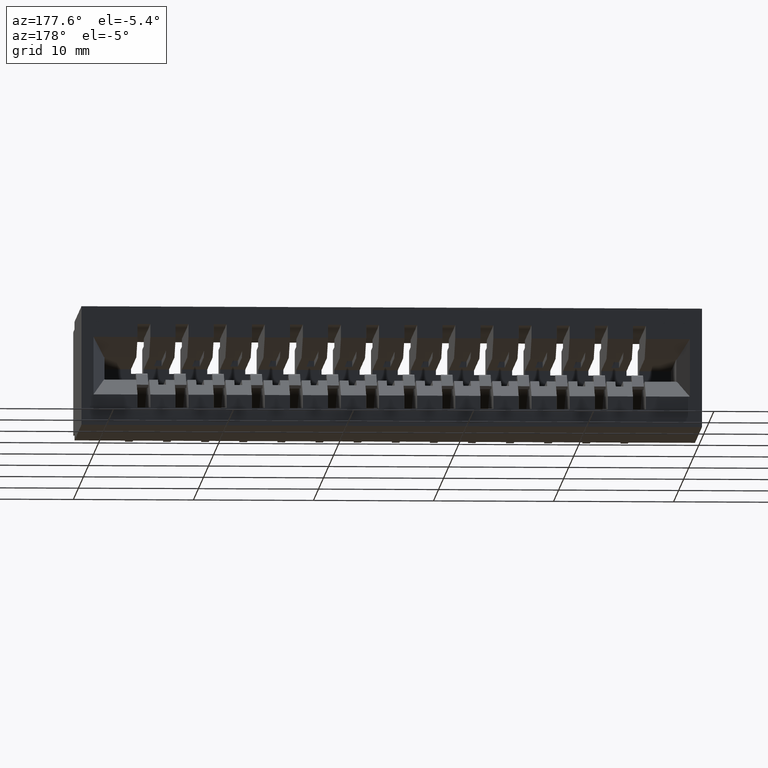
[diagram: clean part render]
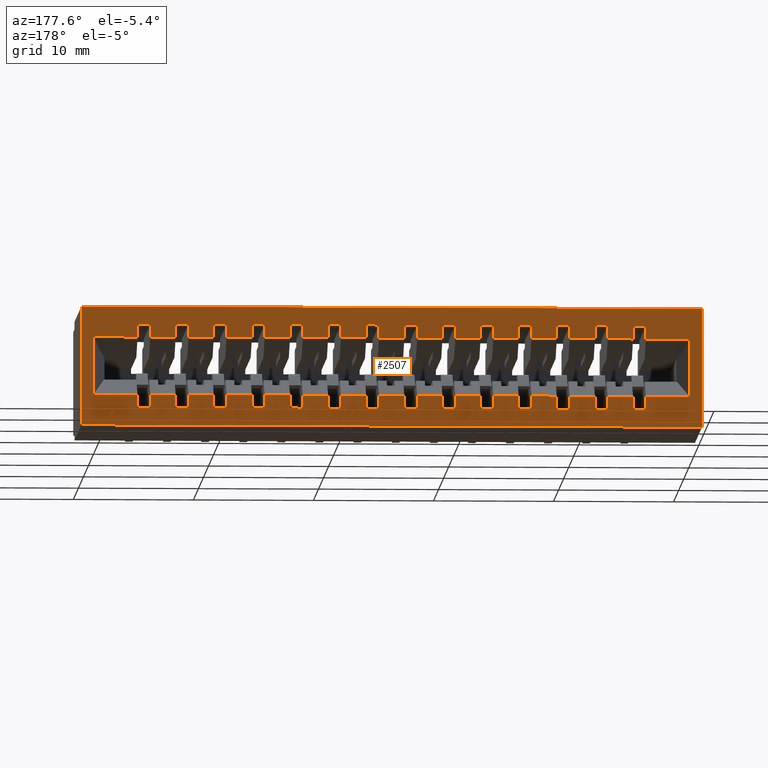
[diagram: same view with one face highlighted and labeled with its STEP entity id]
A machine part, auxiliary view. The second image highlights one B-rep face of the part: STEP entity #2507.
In plain terms, the highlighted planar face has unit normal (0, -1, 0).
Its self-contained STEP definition (entity closure, byte-faithful):
#19 = LINE ( 'NONE', #17558, #17433 ) ;
#40 = VERTEX_POINT ( 'NONE', #19147 ) ;
#44 = VERTEX_POINT ( 'NONE', #19655 ) ;
#85 = CARTESIAN_POINT ( 'NONE',  ( 0.9759999999999996456, 0.6449999999999999067, -0.2897499999999999520 ) ) ;
#115 = VECTOR ( 'NONE', #16267, 39.37007874015748143 ) ;
#142 = CARTESIAN_POINT ( 'NONE',  ( 0.3089999999999996083, 0.6449999999999999067, -0.3325000000000000178 ) ) ;
#215 = VERTEX_POINT ( 'NONE', #20175 ) ;
#307 = LINE ( 'NONE', #22281, #5205 ) ;
#338 = ORIENTED_EDGE ( 'NONE', *, *, #4399, .F. ) ;
#343 = CARTESIAN_POINT ( 'NONE',  ( 0.9759999999999996456, 0.6449999999999999067, -5.373951300518784932E-17 ) ) ;
#356 = DIRECTION ( 'NONE',  ( 1.000000000000000000, -0.0000000000000000000, -2.307304048702925122E-16 ) ) ;
#364 = VERTEX_POINT ( 'NONE', #3763 ) ;
#386 = EDGE_CURVE ( 'NONE', #18807, #13963, #21451, .T. ) ;
#397 = EDGE_CURVE ( 'NONE', #21387, #24680, #17283, .T. ) ;
#427 = CARTESIAN_POINT ( 'NONE',  ( 1.183999999999999497, 0.6449999999999999067, -0.3325000000000000178 ) ) ;
#428 = ORIENTED_EDGE ( 'NONE', *, *, #1228, .F. ) ;
#437 = DIRECTION ( 'NONE',  ( 2.385081683068867604E-16, 0.0000000000000000000, 1.000000000000000000 ) ) ;
#445 = CARTESIAN_POINT ( 'NONE',  ( 0.6009999999999996456, 0.6449999999999999067, -0.2897499999999999520 ) ) ;
#517 = CARTESIAN_POINT ( 'NONE',  ( 2.166979362203022230, 0.6449999999999999067, -0.1002500000000000058 ) ) ;
#528 = CARTESIAN_POINT ( 'NONE',  ( 0.0000000000000000000, 0.6449999999999999067, 0.0000000000000000000 ) ) ;
#565 = EDGE_CURVE ( 'NONE', #14524, #5266, #10782, .T. ) ;
#584 = ORIENTED_EDGE ( 'NONE', *, *, #15013, .F. ) ;
#590 = CARTESIAN_POINT ( 'NONE',  ( 0.3509999999999995901, 0.6449999999999999067, -0.1002500000000000058 ) ) ;
#594 = VERTEX_POINT ( 'NONE', #1349 ) ;
#638 = ORIENTED_EDGE ( 'NONE', *, *, #19449, .F. ) ;
#639 = CARTESIAN_POINT ( 'NONE',  ( 1.850999999999999757, 0.6449999999999999067, -5.373951300518784932E-17 ) ) ;
#664 = ORIENTED_EDGE ( 'NONE', *, *, #23096, .T. ) ;
#674 = CARTESIAN_POINT ( 'NONE',  ( 2.166979362203022230, 0.6449999999999999067, -0.1002500000000000058 ) ) ;
#679 = LINE ( 'NONE', #4866, #14147 ) ;
#726 = VECTOR ( 'NONE', #22044, 39.37007874015748143 ) ;
#812 = ORIENTED_EDGE ( 'NONE', *, *, #8366, .F. ) ;
#867 = VERTEX_POINT ( 'NONE', #14064 ) ;
#881 = LINE ( 'NONE', #8633, #19582 ) ;
#887 = CARTESIAN_POINT ( 'NONE',  ( 1.225999999999999757, 0.6449999999999999067, -5.373951300518784932E-17 ) ) ;
#900 = EDGE_CURVE ( 'NONE', #18486, #19717, #6151, .T. ) ;
#1003 = CARTESIAN_POINT ( 'NONE',  ( 1.558999999999999719, 0.6449999999999999067, -4.404883600063556642E-17 ) ) ;
#1045 = DIRECTION ( 'NONE',  ( 2.385081683068867604E-16, 0.0000000000000000000, 1.000000000000000000 ) ) ;
#1059 = EDGE_CURVE ( 'NONE', #22049, #13804, #17063, .T. ) ;
#1159 = ORIENTED_EDGE ( 'NONE', *, *, #6230, .T. ) ;
#1177 = LINE ( 'NONE', #20514, #11986 ) ;
#1211 = CARTESIAN_POINT ( 'NONE',  ( 0.4339999999999996638, 0.6449999999999999067, -4.404883600063556642E-17 ) ) ;
#1217 = DIRECTION ( 'NONE',  ( 0.0000000000000000000, 0.0000000000000000000, -1.000000000000000000 ) ) ;
#1227 = VECTOR ( 'NONE', #1437, 39.37007874015748143 ) ;
#1228 = EDGE_CURVE ( 'NONE', #12370, #7952, #4446, .T. ) ;
#1254 = LINE ( 'NONE', #9019, #12559 ) ;
#1343 = DIRECTION ( 'NONE',  ( 2.385081683068867604E-16, 0.0000000000000000000, 1.000000000000000000 ) ) ;
#1349 = CARTESIAN_POINT ( 'NONE',  ( 0.5589999999999997193, 0.6449999999999999067, -0.2897499999999999520 ) ) ;
#1353 = VERTEX_POINT ( 'NONE', #16661 ) ;
#1354 = EDGE_CURVE ( 'NONE', #17358, #9690, #22503, .T. ) ;
#1400 = CARTESIAN_POINT ( 'NONE',  ( 1.683999999999999497, 0.6449999999999999067, -0.05750000000000000250 ) ) ;
#1437 = DIRECTION ( 'NONE',  ( 1.000000000000000000, -0.0000000000000000000, -2.307304048702925122E-16 ) ) ;
#1440 = VECTOR ( 'NONE', #3581, 39.37007874015748143 ) ;
#1515 = DIRECTION ( 'NONE',  ( -1.000000000000000000, 0.0000000000000000000, 0.0000000000000000000 ) ) ;
#1580 = ORIENTED_EDGE ( 'NONE', *, *, #565, .T. ) ;
#1646 = CARTESIAN_POINT ( 'NONE',  ( 1.308999999999999941, 0.6449999999999999067, -4.404883600063556642E-17 ) ) ;
#1666 = ORIENTED_EDGE ( 'NONE', *, *, #16595, .T. ) ;
#1667 = CARTESIAN_POINT ( 'NONE',  ( 0.5589999999999996083, 0.6449999999999999067, -0.3325000000000000178 ) ) ;
#1710 = CARTESIAN_POINT ( 'NONE',  ( 1.433999999999999719, 0.6449999999999999067, -4.404883600063556642E-17 ) ) ;
#1778 = VECTOR ( 'NONE', #6759, 39.37007874015748143 ) ;
#1801 = EDGE_CURVE ( 'NONE', #12090, #7566, #12571, .T. ) ;
#1809 = CARTESIAN_POINT ( 'NONE',  ( 1.183999999999999719, 0.6449999999999999067, -0.05750000000000000250 ) ) ;
#1833 = CARTESIAN_POINT ( 'NONE',  ( 2.166979362203022230, 0.6449999999999999067, -0.1002500000000000058 ) ) ;
#1851 = DIRECTION ( 'NONE',  ( 1.000000000000000000, -0.0000000000000000000, -2.307304048702925122E-16 ) ) ;
#1888 = ORIENTED_EDGE ( 'NONE', *, *, #22295, .T. ) ;
#1897 = VERTEX_POINT ( 'NONE', #5163 ) ;
#1924 = CARTESIAN_POINT ( 'NONE',  ( 1.558999999999999719, 0.6449999999999999067, -4.404883600063556642E-17 ) ) ;
#1935 = LINE ( 'NONE', #4092, #22073 ) ;
#2011 = ORIENTED_EDGE ( 'NONE', *, *, #21192, .F. ) ;
#2026 = VECTOR ( 'NONE', #15525, 39.37007874015748143 ) ;
#2045 = CARTESIAN_POINT ( 'NONE',  ( 0.3509999999999995901, 0.6449999999999999067, -0.2897500000000000075 ) ) ;
#2057 = EDGE_CURVE ( 'NONE', #2720, #3446, #19646, .T. ) ;
#2063 = DIRECTION ( 'NONE',  ( -1.000000000000000000, 0.0000000000000000000, 0.0000000000000000000 ) ) ;
#2092 = ORIENTED_EDGE ( 'NONE', *, *, #21095, .T. ) ;
#2093 = LINE ( 'NONE', #23217, #10667 ) ;
#2134 = VERTEX_POINT ( 'NONE', #445 ) ;
#2144 = VERTEX_POINT ( 'NONE', #2714 ) ;
#2163 = CARTESIAN_POINT ( 'NONE',  ( 0.9339999999999996083, 0.6449999999999999067, -0.05750000000000000250 ) ) ;
#2191 = VECTOR ( 'NONE', #17931, 39.37007874015748143 ) ;
#2202 = VERTEX_POINT ( 'NONE', #22432 ) ;
#2257 = EDGE_CURVE ( 'NONE', #3172, #6385, #24226, .T. ) ;
#2301 = CARTESIAN_POINT ( 'NONE',  ( 0.2259999999999997289, 0.6449999999999999067, -0.1002500000000000058 ) ) ;
#2316 = CARTESIAN_POINT ( 'NONE',  ( 0.0000000000000000000, 0.6449999999999999067, -0.3900000000000000133 ) ) ;
#2317 = CARTESIAN_POINT ( 'NONE',  ( 0.7259999999999997566, 0.6449999999999999067, -5.373951300518784932E-17 ) ) ;
#2324 = LINE ( 'NONE', #16197, #20681 ) ;
#2428 = LINE ( 'NONE', #8297, #4684 ) ;
#2429 = LINE ( 'NONE', #528, #14398 ) ;
#2478 = DIRECTION ( 'NONE',  ( -1.000000000000000000, 0.0000000000000000000, 0.0000000000000000000 ) ) ;
#2507 = ADVANCED_FACE ( 'NONE', ( #15693, #6010 ), #10355, .F. ) ;
#2514 = VECTOR ( 'NONE', #8349, 39.37007874015748143 ) ;
#2554 = CARTESIAN_POINT ( 'NONE',  ( 0.9339999999999994973, 0.6449999999999999067, -0.3325000000000000178 ) ) ;
#2609 = DIRECTION ( 'NONE',  ( 2.385081683068867604E-16, 0.0000000000000000000, 1.000000000000000000 ) ) ;
#2614 = VECTOR ( 'NONE', #356, 39.37007874015748143 ) ;
#2627 = LINE ( 'NONE', #22222, #4713 ) ;
#2628 = VERTEX_POINT ( 'NONE', #18474 ) ;
#2678 = CARTESIAN_POINT ( 'NONE',  ( 1.850999999999999757, 0.6449999999999999067, -0.1002500000000000058 ) ) ;
#2694 = VERTEX_POINT ( 'NONE', #8820 ) ;
#2697 = DIRECTION ( 'NONE',  ( 1.000000000000000000, -0.0000000000000000000, -2.307304048702925122E-16 ) ) ;
#2714 = CARTESIAN_POINT ( 'NONE',  ( 0.0000000000000000000, 0.6449999999999999067, 0.0000000000000000000 ) ) ;
#2720 = VERTEX_POINT ( 'NONE', #3814 ) ;
#2723 = CARTESIAN_POINT ( 'NONE',  ( 0.3509999999999997011, 0.6449999999999999067, -0.05750000000000000944 ) ) ;
#2725 = ORIENTED_EDGE ( 'NONE', *, *, #13273, .F. ) ;
#2807 = ORIENTED_EDGE ( 'NONE', *, *, #11262, .T. ) ;
#2810 = EDGE_CURVE ( 'NONE', #18486, #17358, #5479, .T. ) ;
#2818 = DIRECTION ( 'NONE',  ( 2.385081683068867604E-16, 0.0000000000000000000, 1.000000000000000000 ) ) ;
#2849 = EDGE_CURVE ( 'NONE', #15900, #21087, #15147, .T. ) ;
#2906 = DIRECTION ( 'NONE',  ( 2.385081683068867604E-16, 0.0000000000000000000, 1.000000000000000000 ) ) ;
#2954 = VECTOR ( 'NONE', #6829, 39.37007874015748143 ) ;
#2967 = DIRECTION ( 'NONE',  ( -1.000000000000000000, 0.0000000000000000000, 0.0000000000000000000 ) ) ;
#2972 = EDGE_CURVE ( 'NONE', #8147, #8180, #2627, .T. ) ;
#2982 = VECTOR ( 'NONE', #1515, 39.37007874015748143 ) ;
#3100 = EDGE_CURVE ( 'NONE', #9309, #21087, #10794, .T. ) ;
#3119 = CARTESIAN_POINT ( 'NONE',  ( 1.475999999999999757, 0.6449999999999999067, -0.2897499999999999520 ) ) ;
#3139 = ORIENTED_EDGE ( 'NONE', *, *, #17518, .F. ) ;
#3158 = CARTESIAN_POINT ( 'NONE',  ( 2.035000000000000142, 0.6449999999999999067, 0.0000000000000000000 ) ) ;
#3172 = VERTEX_POINT ( 'NONE', #17499 ) ;
#3196 = EDGE_CURVE ( 'NONE', #4858, #2202, #7582, .T. ) ;
#3204 = ORIENTED_EDGE ( 'NONE', *, *, #22877, .F. ) ;
#3338 = VECTOR ( 'NONE', #23103, 39.37007874015748143 ) ;
#3343 = VERTEX_POINT ( 'NONE', #2723 ) ;
#3399 = EDGE_CURVE ( 'NONE', #6872, #7502, #6926, .T. ) ;
#3429 = VECTOR ( 'NONE', #4817, 39.37007874015748143 ) ;
#3446 = VERTEX_POINT ( 'NONE', #16852 ) ;
#3462 = DIRECTION ( 'NONE',  ( -1.000000000000000000, 0.0000000000000000000, 0.0000000000000000000 ) ) ;
#3539 = ORIENTED_EDGE ( 'NONE', *, *, #6155, .T. ) ;
#3574 = VECTOR ( 'NONE', #2697, 39.37007874015748143 ) ;
#3581 = DIRECTION ( 'NONE',  ( -1.000000000000000000, 0.0000000000000000000, 0.0000000000000000000 ) ) ;
#3594 = VERTEX_POINT ( 'NONE', #7553 ) ;
#3616 = VERTEX_POINT ( 'NONE', #13682 ) ;
#3641 = VECTOR ( 'NONE', #22148, 39.37007874015748143 ) ;
#3709 = CARTESIAN_POINT ( 'NONE',  ( 1.850999999999999757, 0.6449999999999999067, -0.2897499999999999520 ) ) ;
#3763 = CARTESIAN_POINT ( 'NONE',  ( 0.3089999999999997193, 0.6449999999999999067, -0.05750000000000000250 ) ) ;
#3765 = VERTEX_POINT ( 'NONE', #16064 ) ;
#3777 = LINE ( 'NONE', #7734, #16062 ) ;
#3814 = CARTESIAN_POINT ( 'NONE',  ( 0.1839999999999996916, 0.6449999999999999067, -0.1002500000000000335 ) ) ;
#3826 = ORIENTED_EDGE ( 'NONE', *, *, #12577, .T. ) ;
#3830 = CARTESIAN_POINT ( 'NONE',  ( 0.5589999999999996083, 0.6449999999999999067, -0.3325000000000000178 ) ) ;
#3840 = LINE ( 'NONE', #5743, #11099 ) ;
#3846 = EDGE_CURVE ( 'NONE', #4865, #12604, #8953, .T. ) ;
#3913 = LINE ( 'NONE', #5811, #2614 ) ;
#3914 = VERTEX_POINT ( 'NONE', #7152 ) ;
#3937 = EDGE_CURVE ( 'NONE', #22438, #7759, #15290, .T. ) ;
#3944 = LINE ( 'NONE', #17183, #19090 ) ;
#3965 = CARTESIAN_POINT ( 'NONE',  ( 1.100999999999999757, 0.6449999999999999067, -0.05750000000000000944 ) ) ;
#3989 = EDGE_CURVE ( 'NONE', #12610, #6028, #9579, .T. ) ;
#3997 = CARTESIAN_POINT ( 'NONE',  ( 1.100999999999999757, 0.6449999999999999067, -0.1002500000000000058 ) ) ;
#4036 = ORIENTED_EDGE ( 'NONE', *, *, #2810, .F. ) ;
#4044 = VERTEX_POINT ( 'NONE', #5187 ) ;
#4056 = CARTESIAN_POINT ( 'NONE',  ( 0.6839999999999997193, 0.6449999999999999067, -4.404883600063556642E-17 ) ) ;
#4070 = ORIENTED_EDGE ( 'NONE', *, *, #10474, .T. ) ;
#4075 = CARTESIAN_POINT ( 'NONE',  ( 0.6839999999999996083, 0.6449999999999999067, -0.2897499999999999520 ) ) ;
#4081 = VECTOR ( 'NONE', #2967, 39.37007874015748143 ) ;
#4087 = DIRECTION ( 'NONE',  ( 2.385081683068867604E-16, 0.0000000000000000000, 1.000000000000000000 ) ) ;
#4092 = CARTESIAN_POINT ( 'NONE',  ( 0.8089999999999996083, 0.6449999999999999067, -0.3325000000000000178 ) ) ;
#4149 = CARTESIAN_POINT ( 'NONE',  ( 1.725999999999999535, 0.6449999999999999067, -0.3325000000000000178 ) ) ;
#4193 = LINE ( 'NONE', #12237, #25102 ) ;
#4202 = EDGE_CURVE ( 'NONE', #6834, #18003, #23731, .T. ) ;
#4275 = LINE ( 'NONE', #8478, #14818 ) ;
#4309 = EDGE_CURVE ( 'NONE', #23785, #3343, #8995, .T. ) ;
#4326 = CARTESIAN_POINT ( 'NONE',  ( 0.2259999999999996734, 0.6449999999999999067, -5.373951300518784932E-17 ) ) ;
#4368 = CARTESIAN_POINT ( 'NONE',  ( 0.4759999999999995346, 0.6449999999999999067, -0.1002500000000000058 ) ) ;
#4369 = DIRECTION ( 'NONE',  ( 1.000000000000000000, -0.0000000000000000000, -2.307304048702925122E-16 ) ) ;
#4399 = EDGE_CURVE ( 'NONE', #22869, #22778, #12934, .T. ) ;
#4404 = DIRECTION ( 'NONE',  ( 2.385081683068867604E-16, 0.0000000000000000000, 1.000000000000000000 ) ) ;
#4445 = EDGE_CURVE ( 'NONE', #8180, #23071, #19515, .T. ) ;
#4446 = LINE ( 'NONE', #14126, #9905 ) ;
#4479 = LINE ( 'NONE', #6508, #15451 ) ;
#4515 = CARTESIAN_POINT ( 'NONE',  ( 2.166979362203022230, 0.6449999999999999067, -0.2897500000000000075 ) ) ;
#4531 = EDGE_CURVE ( 'NONE', #8946, #15252, #7569, .T. ) ;
#4574 = VERTEX_POINT ( 'NONE', #6402 ) ;
#4575 = EDGE_CURVE ( 'NONE', #5706, #22935, #23572, .T. ) ;
#4598 = VECTOR ( 'NONE', #10884, 39.37007874015748143 ) ;
#4629 = ORIENTED_EDGE ( 'NONE', *, *, #3399, .T. ) ;
#4633 = ORIENTED_EDGE ( 'NONE', *, *, #1801, .F. ) ;
#4646 = LINE ( 'NONE', #4515, #22025 ) ;
#4684 = VECTOR ( 'NONE', #21633, 39.37007874015748143 ) ;
#4686 = DIRECTION ( 'NONE',  ( 2.385081683068867604E-16, 0.0000000000000000000, 1.000000000000000000 ) ) ;
#4688 = EDGE_CURVE ( 'NONE', #13804, #13963, #15946, .T. ) ;
#4699 = CARTESIAN_POINT ( 'NONE',  ( 0.9759999999999995346, 0.6449999999999999067, -0.3325000000000000178 ) ) ;
#4713 = VECTOR ( 'NONE', #10425, 39.37007874015748143 ) ;
#4798 = CARTESIAN_POINT ( 'NONE',  ( 0.3089999999999996083, 0.6449999999999999067, -0.1002499999999999364 ) ) ;
#4817 = DIRECTION ( 'NONE',  ( 2.385081683068867604E-16, 0.0000000000000000000, 1.000000000000000000 ) ) ;
#4858 = VERTEX_POINT ( 'NONE', #18982 ) ;
#4862 = EDGE_CURVE ( 'NONE', #23071, #8404, #3840, .T. ) ;
#4865 = VERTEX_POINT ( 'NONE', #21254 ) ;
#4866 = CARTESIAN_POINT ( 'NONE',  ( 1.808999999999999719, 0.6449999999999999067, -0.05750000000000000250 ) ) ;
#4930 = EDGE_CURVE ( 'NONE', #21461, #24449, #21767, .T. ) ;
#4942 = VERTEX_POINT ( 'NONE', #18089 ) ;
#4944 = CARTESIAN_POINT ( 'NONE',  ( 0.8089999999999997193, 0.6449999999999999067, -0.1002499999999999780 ) ) ;
#4955 = DIRECTION ( 'NONE',  ( -1.000000000000000000, 0.0000000000000000000, 0.0000000000000000000 ) ) ;
#4999 = DIRECTION ( 'NONE',  ( 1.000000000000000000, -0.0000000000000000000, -2.307304048702925122E-16 ) ) ;
#5161 = CARTESIAN_POINT ( 'NONE',  ( 1.995402622583515972, 0.6449999999999999067, -0.1002500000000000058 ) ) ;
#5163 = CARTESIAN_POINT ( 'NONE',  ( 0.6009999999999995346, 0.6449999999999999067, -0.3325000000000000178 ) ) ;
#5183 = LINE ( 'NONE', #11053, #7890 ) ;
#5187 = CARTESIAN_POINT ( 'NONE',  ( 1.308999999999999941, 0.6449999999999999067, -0.2897499999999999520 ) ) ;
#5199 = ORIENTED_EDGE ( 'NONE', *, *, #20115, .F. ) ;
#5205 = VECTOR ( 'NONE', #2818, 39.37007874015748143 ) ;
#5266 = VERTEX_POINT ( 'NONE', #4149 ) ;
#5294 = DIRECTION ( 'NONE',  ( 1.000000000000000000, -0.0000000000000000000, -2.307304048702925122E-16 ) ) ;
#5304 = ORIENTED_EDGE ( 'NONE', *, *, #23437, .F. ) ;
#5324 = ORIENTED_EDGE ( 'NONE', *, *, #24107, .T. ) ;
#5354 = DIRECTION ( 'NONE',  ( -1.000000000000000000, 0.0000000000000000000, 0.0000000000000000000 ) ) ;
#5413 = VERTEX_POINT ( 'NONE', #23741 ) ;
#5473 = ORIENTED_EDGE ( 'NONE', *, *, #20852, .F. ) ;
#5479 = LINE ( 'NONE', #18840, #17698 ) ;
#5488 = LINE ( 'NONE', #24448, #13896 ) ;
#5499 = CARTESIAN_POINT ( 'NONE',  ( 1.308999999999999941, 0.6449999999999999067, -0.3325000000000000178 ) ) ;
#5551 = CARTESIAN_POINT ( 'NONE',  ( 1.683999999999999497, 0.6449999999999999067, -0.05750000000000000250 ) ) ;
#5580 = CARTESIAN_POINT ( 'NONE',  ( 1.683999999999999497, 0.6449999999999999067, -4.404883600063556642E-17 ) ) ;
#5597 = VECTOR ( 'NONE', #16417, 39.37007874015748143 ) ;
#5684 = VECTOR ( 'NONE', #7787, 39.37007874015748143 ) ;
#5690 = LINE ( 'NONE', #22742, #18818 ) ;
#5699 = DIRECTION ( 'NONE',  ( 2.385081683068867604E-16, 0.0000000000000000000, 1.000000000000000000 ) ) ;
#5706 = VERTEX_POINT ( 'NONE', #3997 ) ;
#5720 = LINE ( 'NONE', #11716, #2026 ) ;
#5743 = CARTESIAN_POINT ( 'NONE',  ( 1.850999999999999757, 0.6449999999999999067, -5.373951300518784932E-17 ) ) ;
#5763 = VERTEX_POINT ( 'NONE', #17742 ) ;
#5801 = CARTESIAN_POINT ( 'NONE',  ( 1.808999999999999719, 0.6449999999999999067, -4.404883600063556642E-17 ) ) ;
#5808 = ORIENTED_EDGE ( 'NONE', *, *, #5997, .F. ) ;
#5811 = CARTESIAN_POINT ( 'NONE',  ( 1.808999999999999719, 0.6449999999999999067, -0.3325000000000000178 ) ) ;
#5845 = CARTESIAN_POINT ( 'NONE',  ( 1.225999999999999757, 0.6449999999999999067, -0.2897499999999999520 ) ) ;
#5922 = VECTOR ( 'NONE', #9658, 39.37007874015748143 ) ;
#5944 = LINE ( 'NONE', #12073, #13452 ) ;
#5978 = DIRECTION ( 'NONE',  ( 2.385081683068867604E-16, 0.0000000000000000000, 1.000000000000000000 ) ) ;
#5997 = EDGE_CURVE ( 'NONE', #594, #21119, #17348, .T. ) ;
#6010 = FACE_BOUND ( 'NONE', #13737, .T. ) ;
#6028 = VERTEX_POINT ( 'NONE', #2045 ) ;
#6050 = VECTOR ( 'NONE', #21655, 39.37007874015748143 ) ;
#6123 = CARTESIAN_POINT ( 'NONE',  ( 2.035000000000000142, 0.6449999999999999067, -0.3900000000000000133 ) ) ;
#6151 = LINE ( 'NONE', #14180, #19390 ) ;
#6153 = CARTESIAN_POINT ( 'NONE',  ( 1.850999999999999757, 0.6449999999999999067, -0.05750000000000000944 ) ) ;
#6155 = EDGE_CURVE ( 'NONE', #4574, #25143, #6251, .T. ) ;
#6209 = VERTEX_POINT ( 'NONE', #15805 ) ;
#6222 = LINE ( 'NONE', #14133, #12778 ) ;
#6224 = CARTESIAN_POINT ( 'NONE',  ( 0.3509999999999995901, 0.6449999999999999067, -0.3325000000000000178 ) ) ;
#6230 = EDGE_CURVE ( 'NONE', #2144, #6872, #2429, .T. ) ;
#6251 = LINE ( 'NONE', #8046, #18053 ) ;
#6385 = VERTEX_POINT ( 'NONE', #14775 ) ;
#6402 = CARTESIAN_POINT ( 'NONE',  ( 0.9759999999999996456, 0.6449999999999999067, -0.1002500000000000058 ) ) ;
#6415 = VECTOR ( 'NONE', #16316, 39.37007874015748143 ) ;
#6508 = CARTESIAN_POINT ( 'NONE',  ( 0.1839999999999996361, 0.6449999999999999067, -0.3325000000000000178 ) ) ;
#6588 = LINE ( 'NONE', #1003, #22434 ) ;
#6621 = EDGE_CURVE ( 'NONE', #23141, #15429, #11961, .T. ) ;
#6685 = EDGE_CURVE ( 'NONE', #22722, #6209, #15889, .T. ) ;
#6699 = CARTESIAN_POINT ( 'NONE',  ( 1.600999999999999757, 0.6449999999999999067, -0.3325000000000000178 ) ) ;
#6710 = ORIENTED_EDGE ( 'NONE', *, *, #7210, .F. ) ;
#6723 = DIRECTION ( 'NONE',  ( 1.000000000000000000, -0.0000000000000000000, -2.307304048702925122E-16 ) ) ;
#6740 = CARTESIAN_POINT ( 'NONE',  ( 2.166979362203022230, 0.6449999999999999067, -0.2897500000000000075 ) ) ;
#6759 = DIRECTION ( 'NONE',  ( 2.385081683068867604E-16, 0.0000000000000000000, 1.000000000000000000 ) ) ;
#6763 = LINE ( 'NONE', #10471, #14839 ) ;
#6781 = DIRECTION ( 'NONE',  ( 1.000000000000000000, -0.0000000000000000000, -2.307304048702925122E-16 ) ) ;
#6803 = ORIENTED_EDGE ( 'NONE', *, *, #7404, .F. ) ;
#6807 = VERTEX_POINT ( 'NONE', #22112 ) ;
#6829 = DIRECTION ( 'NONE',  ( -1.000000000000000000, 0.0000000000000000000, 0.0000000000000000000 ) ) ;
#6832 = DIRECTION ( 'NONE',  ( 1.000000000000000000, -0.0000000000000000000, -2.307304048702925122E-16 ) ) ;
#6834 = VERTEX_POINT ( 'NONE', #4699 ) ;
#6846 = VECTOR ( 'NONE', #20137, 39.37007874015748143 ) ;
#6871 = DIRECTION ( 'NONE',  ( 1.000000000000000000, -0.0000000000000000000, -2.307304048702925122E-16 ) ) ;
#6872 = VERTEX_POINT ( 'NONE', #3158 ) ;
#6879 = LINE ( 'NONE', #18336, #15209 ) ;
#6883 = ORIENTED_EDGE ( 'NONE', *, *, #9302, .T. ) ;
#6912 = LINE ( 'NONE', #14671, #18504 ) ;
#6920 = DIRECTION ( 'NONE',  ( -1.000000000000000000, 0.0000000000000000000, 0.0000000000000000000 ) ) ;
#6926 = LINE ( 'NONE', #12796, #20055 ) ;
#6938 = LINE ( 'NONE', #24101, #13182 ) ;
#6943 = LINE ( 'NONE', #20564, #18917 ) ;
#6953 = EDGE_CURVE ( 'NONE', #13198, #18340, #5690, .T. ) ;
#7056 = CARTESIAN_POINT ( 'NONE',  ( 0.6009999999999996456, 0.6449999999999999067, -0.05750000000000000944 ) ) ;
#7059 = EDGE_CURVE ( 'NONE', #12328, #2628, #3913, .T. ) ;
#7067 = DIRECTION ( 'NONE',  ( 1.000000000000000000, -0.0000000000000000000, -2.307304048702925122E-16 ) ) ;
#7109 = ORIENTED_EDGE ( 'NONE', *, *, #9520, .T. ) ;
#7152 = CARTESIAN_POINT ( 'NONE',  ( 1.350999999999999979, 0.6449999999999999067, -0.2897499999999999520 ) ) ;
#7164 = CARTESIAN_POINT ( 'NONE',  ( 1.433999999999999719, 0.6449999999999999067, -0.05750000000000000250 ) ) ;
#7168 = ORIENTED_EDGE ( 'NONE', *, *, #21016, .F. ) ;
#7171 = CARTESIAN_POINT ( 'NONE',  ( 2.166979362203022230, 0.6449999999999999067, -0.2897500000000000075 ) ) ;
#7210 = EDGE_CURVE ( 'NONE', #8550, #2694, #20408, .T. ) ;
#7221 = VECTOR ( 'NONE', #4404, 39.37007874015748143 ) ;
#7274 = ORIENTED_EDGE ( 'NONE', *, *, #7904, .T. ) ;
#7363 = EDGE_CURVE ( 'NONE', #12849, #22722, #1935, .T. ) ;
#7387 = DIRECTION ( 'NONE',  ( 2.385081683068867604E-16, 0.0000000000000000000, 1.000000000000000000 ) ) ;
#7404 = EDGE_CURVE ( 'NONE', #5763, #7897, #21405, .T. ) ;
#7430 = DIRECTION ( 'NONE',  ( 2.385081683068867604E-16, 0.0000000000000000000, 1.000000000000000000 ) ) ;
#7463 = EDGE_CURVE ( 'NONE', #22049, #21736, #23933, .T. ) ;
#7502 = VERTEX_POINT ( 'NONE', #6123 ) ;
#7526 = DIRECTION ( 'NONE',  ( -0.0000000000000000000, -0.0000000000000000000, 1.000000000000000000 ) ) ;
#7538 = VECTOR ( 'NONE', #23153, 39.37007874015748143 ) ;
#7552 = LINE ( 'NONE', #23063, #20369 ) ;
#7553 = CARTESIAN_POINT ( 'NONE',  ( 0.9339999999999996083, 0.6449999999999999067, -0.1002499999999999780 ) ) ;
#7566 = VERTEX_POINT ( 'NONE', #14837 ) ;
#7569 = LINE ( 'NONE', #7689, #24497 ) ;
#7582 = LINE ( 'NONE', #1710, #15322 ) ;
#7628 = EDGE_CURVE ( 'NONE', #4858, #15900, #12760, .T. ) ;
#7641 = LINE ( 'NONE', #23413, #19458 ) ;
#7672 = VERTEX_POINT ( 'NONE', #9198 ) ;
#7680 = EDGE_CURVE ( 'NONE', #11197, #23282, #18717, .T. ) ;
#7689 = CARTESIAN_POINT ( 'NONE',  ( 0.4339999999999996638, 0.6449999999999999067, -4.404883600063556642E-17 ) ) ;
#7704 = EDGE_CURVE ( 'NONE', #7746, #12610, #9815, .T. ) ;
#7710 = VECTOR ( 'NONE', #7526, 39.37007874015748143 ) ;
#7725 = DIRECTION ( 'NONE',  ( 2.385081683068867604E-16, 0.0000000000000000000, 1.000000000000000000 ) ) ;
#7734 = CARTESIAN_POINT ( 'NONE',  ( 0.2259999999999996734, 0.6449999999999999067, -5.373951300518784932E-17 ) ) ;
#7746 = VERTEX_POINT ( 'NONE', #13645 ) ;
#7758 = DIRECTION ( 'NONE',  ( 1.000000000000000000, -0.0000000000000000000, -2.307304048702925122E-16 ) ) ;
#7759 = VERTEX_POINT ( 'NONE', #23151 ) ;
#7787 = DIRECTION ( 'NONE',  ( 1.000000000000000000, -0.0000000000000000000, -2.307304048702925122E-16 ) ) ;
#7835 = EDGE_CURVE ( 'NONE', #2628, #8746, #19721, .T. ) ;
#7846 = VECTOR ( 'NONE', #1343, 39.37007874015748143 ) ;
#7858 = EDGE_CURVE ( 'NONE', #1353, #8144, #6222, .T. ) ;
#7872 = VECTOR ( 'NONE', #10599, 39.37007874015748143 ) ;
#7874 = ORIENTED_EDGE ( 'NONE', *, *, #11324, .F. ) ;
#7890 = VECTOR ( 'NONE', #13221, 39.37007874015748143 ) ;
#7897 = VERTEX_POINT ( 'NONE', #15895 ) ;
#7899 = ORIENTED_EDGE ( 'NONE', *, *, #21820, .F. ) ;
#7904 = EDGE_CURVE ( 'NONE', #21871, #3616, #19970, .T. ) ;
#7908 = VECTOR ( 'NONE', #6920, 39.37007874015748143 ) ;
#7914 = CARTESIAN_POINT ( 'NONE',  ( 2.166979362203022230, 0.6449999999999999067, -0.2897500000000000075 ) ) ;
#7952 = VERTEX_POINT ( 'NONE', #8785 ) ;
#7967 = VECTOR ( 'NONE', #21527, 39.37007874015748143 ) ;
#8019 = DIRECTION ( 'NONE',  ( 1.000000000000000000, -0.0000000000000000000, -2.307304048702925122E-16 ) ) ;
#8046 = CARTESIAN_POINT ( 'NONE',  ( 0.9759999999999996456, 0.6449999999999999067, -5.373951300518784932E-17 ) ) ;
#8073 = LINE ( 'NONE', #15832, #12014 ) ;
#8144 = VERTEX_POINT ( 'NONE', #6699 ) ;
#8147 = VERTEX_POINT ( 'NONE', #22460 ) ;
#8148 = DIRECTION ( 'NONE',  ( 2.385081683068867604E-16, 0.0000000000000000000, 1.000000000000000000 ) ) ;
#8180 = VERTEX_POINT ( 'NONE', #5161 ) ;
#8287 = EDGE_CURVE ( 'NONE', #7746, #867, #15580, .T. ) ;
#8297 = CARTESIAN_POINT ( 'NONE',  ( 1.058999999999999719, 0.6449999999999999067, -4.404883600063556642E-17 ) ) ;
#8319 = CARTESIAN_POINT ( 'NONE',  ( 2.166979362203022230, 0.6449999999999999067, -0.2897500000000000075 ) ) ;
#8349 = DIRECTION ( 'NONE',  ( -1.000000000000000000, 0.0000000000000000000, 0.0000000000000000000 ) ) ;
#8366 = EDGE_CURVE ( 'NONE', #22438, #17049, #14182, .T. ) ;
#8404 = VERTEX_POINT ( 'NONE', #6153 ) ;
#8439 = LINE ( 'NONE', #10359, #6415 ) ;
#8450 = DIRECTION ( 'NONE',  ( 2.385081683068867604E-16, 0.0000000000000000000, 1.000000000000000000 ) ) ;
#8478 = CARTESIAN_POINT ( 'NONE',  ( 2.166979362203022230, 0.6449999999999999067, -0.1002500000000000058 ) ) ;
#8512 = ORIENTED_EDGE ( 'NONE', *, *, #22652, .T. ) ;
#8514 = LINE ( 'NONE', #18674, #115 ) ;
#8545 = CARTESIAN_POINT ( 'NONE',  ( 0.1839999999999996916, 0.6449999999999999067, -4.404883600063556642E-17 ) ) ;
#8550 = VERTEX_POINT ( 'NONE', #22183 ) ;
#8571 = CARTESIAN_POINT ( 'NONE',  ( 1.725999999999999535, 0.6449999999999999067, -0.05750000000000000944 ) ) ;
#8578 = ORIENTED_EDGE ( 'NONE', *, *, #16266, .T. ) ;
#8583 = VECTOR ( 'NONE', #20931, 39.37007874015748143 ) ;
#8585 = CARTESIAN_POINT ( 'NONE',  ( 2.166979362203022230, 0.6449999999999999067, -0.2897500000000000075 ) ) ;
#8633 = CARTESIAN_POINT ( 'NONE',  ( 1.558999999999999719, 0.6449999999999999067, -0.05750000000000000250 ) ) ;
#8697 = VECTOR ( 'NONE', #12107, 39.37007874015748143 ) ;
#8733 = DIRECTION ( 'NONE',  ( 2.385081683068867604E-16, 0.0000000000000000000, 1.000000000000000000 ) ) ;
#8738 = CARTESIAN_POINT ( 'NONE',  ( 1.225999999999999757, 0.6449999999999999067, -0.05750000000000000944 ) ) ;
#8746 = VERTEX_POINT ( 'NONE', #3709 ) ;
#8785 = CARTESIAN_POINT ( 'NONE',  ( 0.9339999999999996083, 0.6449999999999999067, -0.2897500000000000075 ) ) ;
#8792 = CARTESIAN_POINT ( 'NONE',  ( 0.6839999999999996083, 0.6449999999999999067, -0.3325000000000000178 ) ) ;
#8804 = LINE ( 'NONE', #16557, #10369 ) ;
#8820 = CARTESIAN_POINT ( 'NONE',  ( 0.4339999999999996638, 0.6449999999999999067, -0.05750000000000000250 ) ) ;
#8857 = ORIENTED_EDGE ( 'NONE', *, *, #4688, .F. ) ;
#8871 = DIRECTION ( 'NONE',  ( 2.385081683068867604E-16, 0.0000000000000000000, 1.000000000000000000 ) ) ;
#8914 = VECTOR ( 'NONE', #5978, 39.37007874015748143 ) ;
#8933 = EDGE_CURVE ( 'NONE', #8147, #8746, #1177, .T. ) ;
#8946 = VERTEX_POINT ( 'NONE', #24187 ) ;
#8953 = LINE ( 'NONE', #12902, #14612 ) ;
#8995 = LINE ( 'NONE', #20561, #7846 ) ;
#9019 = CARTESIAN_POINT ( 'NONE',  ( 0.9339999999999994973, 0.6449999999999999067, -0.3325000000000000178 ) ) ;
#9031 = ORIENTED_EDGE ( 'NONE', *, *, #7680, .T. ) ;
#9058 = ORIENTED_EDGE ( 'NONE', *, *, #20426, .F. ) ;
#9133 = LINE ( 'NONE', #11526, #8583 ) ;
#9198 = CARTESIAN_POINT ( 'NONE',  ( 1.058999999999999497, 0.6449999999999999067, -0.3325000000000000178 ) ) ;
#9252 = VERTEX_POINT ( 'NONE', #5845 ) ;
#9270 = CARTESIAN_POINT ( 'NONE',  ( 0.8509999999999997566, 0.6449999999999999067, -0.05750000000000000944 ) ) ;
#9302 = EDGE_CURVE ( 'NONE', #18826, #6385, #16403, .T. ) ;
#9309 = VERTEX_POINT ( 'NONE', #20226 ) ;
#9333 = CARTESIAN_POINT ( 'NONE',  ( 0.4339999999999996638, 0.6449999999999999067, -0.05750000000000000250 ) ) ;
#9406 = LINE ( 'NONE', #20723, #24588 ) ;
#9428 = ORIENTED_EDGE ( 'NONE', *, *, #15376, .T. ) ;
#9520 = EDGE_CURVE ( 'NONE', #3765, #44, #9406, .T. ) ;
#9523 = VECTOR ( 'NONE', #7758, 39.37007874015748143 ) ;
#9531 = CARTESIAN_POINT ( 'NONE',  ( 1.350999999999999979, 0.6449999999999999067, -5.373951300518784932E-17 ) ) ;
#9579 = LINE ( 'NONE', #20878, #17118 ) ;
#9636 = ORIENTED_EDGE ( 'NONE', *, *, #21919, .F. ) ;
#9651 = CARTESIAN_POINT ( 'NONE',  ( 0.03959737741648417658, 0.6449999999999999067, -0.3900000000000000133 ) ) ;
#9658 = DIRECTION ( 'NONE',  ( 2.385081683068867604E-16, 0.0000000000000000000, 1.000000000000000000 ) ) ;
#9690 = VERTEX_POINT ( 'NONE', #10259 ) ;
#9697 = EDGE_CURVE ( 'NONE', #4942, #11776, #3777, .T. ) ;
#9815 = LINE ( 'NONE', #142, #9523 ) ;
#9828 = CARTESIAN_POINT ( 'NONE',  ( 0.1839999999999996361, 0.6449999999999999067, -0.3325000000000000178 ) ) ;
#9832 = LINE ( 'NONE', #1924, #21685 ) ;
#9853 = ORIENTED_EDGE ( 'NONE', *, *, #19219, .T. ) ;
#9855 = VERTEX_POINT ( 'NONE', #15441 ) ;
#9905 = VECTOR ( 'NONE', #18059, 39.37007874015748143 ) ;
#9943 = DIRECTION ( 'NONE',  ( 2.385081683068867604E-16, 0.0000000000000000000, 1.000000000000000000 ) ) ;
#9966 = DIRECTION ( 'NONE',  ( 1.000000000000000000, -0.0000000000000000000, -2.307304048702925122E-16 ) ) ;
#9977 = DIRECTION ( 'NONE',  ( 1.000000000000000000, -0.0000000000000000000, -2.307304048702925122E-16 ) ) ;
#10004 = VECTOR ( 'NONE', #19829, 39.37007874015748143 ) ;
#10016 = EDGE_CURVE ( 'NONE', #22869, #18807, #17589, .T. ) ;
#10035 = ORIENTED_EDGE ( 'NONE', *, *, #10616, .T. ) ;
#10153 = ORIENTED_EDGE ( 'NONE', *, *, #21856, .F. ) ;
#10187 = LINE ( 'NONE', #13985, #10004 ) ;
#10213 = LINE ( 'NONE', #517, #11366 ) ;
#10259 = CARTESIAN_POINT ( 'NONE',  ( 1.100999999999999535, 0.6449999999999999067, -0.2897499999999999520 ) ) ;
#10261 = CARTESIAN_POINT ( 'NONE',  ( 0.8089999999999997193, 0.6449999999999999067, -0.05750000000000000250 ) ) ;
#10293 = VECTOR ( 'NONE', #4369, 39.37007874015748143 ) ;
#10294 = ORIENTED_EDGE ( 'NONE', *, *, #16753, .F. ) ;
#10306 = CARTESIAN_POINT ( 'NONE',  ( 1.058999999999999719, 0.6449999999999999067, -0.1002499999999999919 ) ) ;
#10354 = CARTESIAN_POINT ( 'NONE',  ( 2.166979362203022230, 0.6449999999999999067, -0.1002500000000000058 ) ) ;
#10355 = PLANE ( 'NONE',  #13232 ) ;
#10359 = CARTESIAN_POINT ( 'NONE',  ( 2.166979362203022230, 0.6449999999999999067, -0.1002500000000000058 ) ) ;
#10369 = VECTOR ( 'NONE', #14391, 39.37007874015748143 ) ;
#10374 = CARTESIAN_POINT ( 'NONE',  ( 0.8509999999999996456, 0.6449999999999999067, -0.3325000000000000178 ) ) ;
#10425 = DIRECTION ( 'NONE',  ( 0.0000000000000000000, 0.0000000000000000000, 1.000000000000000000 ) ) ;
#10449 = ORIENTED_EDGE ( 'NONE', *, *, #22608, .T. ) ;
#10471 = CARTESIAN_POINT ( 'NONE',  ( 1.350999999999999979, 0.6449999999999999067, -5.373951300518784932E-17 ) ) ;
#10474 = EDGE_CURVE ( 'NONE', #8946, #24657, #18578, .T. ) ;
#10481 = LINE ( 'NONE', #2317, #6846 ) ;
#10519 = DIRECTION ( 'NONE',  ( -1.000000000000000000, 0.0000000000000000000, 0.0000000000000000000 ) ) ;
#10568 = VECTOR ( 'NONE', #437, 39.37007874015748143 ) ;
#10577 = VERTEX_POINT ( 'NONE', #1400 ) ;
#10581 = ORIENTED_EDGE ( 'NONE', *, *, #12555, .F. ) ;
#10599 = DIRECTION ( 'NONE',  ( 1.000000000000000000, -0.0000000000000000000, -2.307304048702925122E-16 ) ) ;
#10616 = EDGE_CURVE ( 'NONE', #13456, #9690, #15255, .T. ) ;
#10642 = CARTESIAN_POINT ( 'NONE',  ( 0.4759999999999995346, 0.6449999999999999067, -0.2897500000000000075 ) ) ;
#10667 = VECTOR ( 'NONE', #17629, 39.37007874015748143 ) ;
#10696 = LINE ( 'NONE', #8792, #12266 ) ;
#10698 = ORIENTED_EDGE ( 'NONE', *, *, #3196, .F. ) ;
#10731 = CARTESIAN_POINT ( 'NONE',  ( 0.5589999999999997193, 0.6449999999999999067, -0.05750000000000000250 ) ) ;
#10782 = LINE ( 'NONE', #14587, #12879 ) ;
#10785 = LINE ( 'NONE', #23992, #15118 ) ;
#10794 = LINE ( 'NONE', #18661, #20611 ) ;
#10843 = VECTOR ( 'NONE', #21990, 39.37007874015748143 ) ;
#10860 = CARTESIAN_POINT ( 'NONE',  ( 1.433999999999999719, 0.6449999999999999067, -0.3325000000000000178 ) ) ;
#10884 = DIRECTION ( 'NONE',  ( 2.385081683068867604E-16, 0.0000000000000000000, 1.000000000000000000 ) ) ;
#11053 = CARTESIAN_POINT ( 'NONE',  ( 2.166979362203022230, 0.6449999999999999067, -0.2897500000000000075 ) ) ;
#11099 = VECTOR ( 'NONE', #19365, 39.37007874015748143 ) ;
#11138 = EDGE_CURVE ( 'NONE', #1897, #2134, #2093, .T. ) ;
#11172 = LINE ( 'NONE', #9651, #3338 ) ;
#11197 = VERTEX_POINT ( 'NONE', #19789 ) ;
#11203 = LINE ( 'NONE', #5580, #11858 ) ;
#11219 = DIRECTION ( 'NONE',  ( 2.385081683068867604E-16, 0.0000000000000000000, 1.000000000000000000 ) ) ;
#11248 = ORIENTED_EDGE ( 'NONE', *, *, #22786, .F. ) ;
#11262 = EDGE_CURVE ( 'NONE', #12050, #21871, #25127, .T. ) ;
#11296 = CARTESIAN_POINT ( 'NONE',  ( 0.0000000000000000000, 0.6449999999999999067, -0.3900000000000000133 ) ) ;
#11298 = DIRECTION ( 'NONE',  ( 1.000000000000000000, -0.0000000000000000000, -2.307304048702925122E-16 ) ) ;
#11324 = EDGE_CURVE ( 'NONE', #18850, #18003, #4646, .T. ) ;
#11366 = VECTOR ( 'NONE', #11982, 39.37007874015748143 ) ;
#11428 = VERTEX_POINT ( 'NONE', #16615 ) ;
#11521 = CARTESIAN_POINT ( 'NONE',  ( 0.3089999999999997193, 0.6449999999999999067, -4.404883600063556642E-17 ) ) ;
#11526 = CARTESIAN_POINT ( 'NONE',  ( 0.8089999999999997193, 0.6449999999999999067, -0.05750000000000000250 ) ) ;
#11546 = VECTOR ( 'NONE', #14300, 39.37007874015748143 ) ;
#11565 = ORIENTED_EDGE ( 'NONE', *, *, #15627, .F. ) ;
#11572 = VECTOR ( 'NONE', #17613, 39.37007874015748143 ) ;
#11613 = EDGE_CURVE ( 'NONE', #17361, #215, #4193, .T. ) ;
#11621 = CARTESIAN_POINT ( 'NONE',  ( 1.225999999999999757, 0.6449999999999999067, -0.1002500000000000058 ) ) ;
#11716 = CARTESIAN_POINT ( 'NONE',  ( 2.166979362203022230, 0.6449999999999999067, -0.1002500000000000058 ) ) ;
#11730 = EDGE_CURVE ( 'NONE', #11755, #3616, #14637, .T. ) ;
#11740 = VECTOR ( 'NONE', #12632, 39.37007874015748143 ) ;
#11748 = ORIENTED_EDGE ( 'NONE', *, *, #13888, .F. ) ;
#11755 = VERTEX_POINT ( 'NONE', #22254 ) ;
#11769 = LINE ( 'NONE', #8319, #6050 ) ;
#11776 = VERTEX_POINT ( 'NONE', #16676 ) ;
#11788 = DIRECTION ( 'NONE',  ( 2.385081683068867604E-16, 0.0000000000000000000, 1.000000000000000000 ) ) ;
#11801 = CARTESIAN_POINT ( 'NONE',  ( 1.683999999999999497, 0.6449999999999999067, -0.3325000000000000178 ) ) ;
#11837 = DIRECTION ( 'NONE',  ( 2.385081683068867604E-16, 0.0000000000000000000, 1.000000000000000000 ) ) ;
#11858 = VECTOR ( 'NONE', #5699, 39.37007874015748143 ) ;
#11875 = DIRECTION ( 'NONE',  ( 0.0000000000000000000, -1.000000000000000000, 0.0000000000000000000 ) ) ;
#11906 = ORIENTED_EDGE ( 'NONE', *, *, #19414, .F. ) ;
#11961 = LINE ( 'NONE', #4056, #24135 ) ;
#11982 = DIRECTION ( 'NONE',  ( -1.000000000000000000, 0.0000000000000000000, 0.0000000000000000000 ) ) ;
#11986 = VECTOR ( 'NONE', #22147, 39.37007874015748143 ) ;
#12014 = VECTOR ( 'NONE', #12029, 39.37007874015748143 ) ;
#12029 = DIRECTION ( 'NONE',  ( -1.000000000000000000, 0.0000000000000000000, 0.0000000000000000000 ) ) ;
#12050 = VERTEX_POINT ( 'NONE', #4798 ) ;
#12073 = CARTESIAN_POINT ( 'NONE',  ( 2.166979362203022230, 0.6449999999999999067, -0.1002500000000000058 ) ) ;
#12090 = VERTEX_POINT ( 'NONE', #16873 ) ;
#12100 = CARTESIAN_POINT ( 'NONE',  ( 0.8509999999999997566, 0.6449999999999999067, -5.373951300518784932E-17 ) ) ;
#12107 = DIRECTION ( 'NONE',  ( 2.385081683068867604E-16, 0.0000000000000000000, 1.000000000000000000 ) ) ;
#12122 = DIRECTION ( 'NONE',  ( 2.385081683068867604E-16, 0.0000000000000000000, 1.000000000000000000 ) ) ;
#12133 = ORIENTED_EDGE ( 'NONE', *, *, #7628, .T. ) ;
#12224 = EDGE_CURVE ( 'NONE', #15429, #2134, #22965, .T. ) ;
#12237 = CARTESIAN_POINT ( 'NONE',  ( 1.808999999999999719, 0.6449999999999999067, -4.404883600063556642E-17 ) ) ;
#12247 = ORIENTED_EDGE ( 'NONE', *, *, #4862, .T. ) ;
#12266 = VECTOR ( 'NONE', #6871, 39.37007874015748143 ) ;
#12271 = CARTESIAN_POINT ( 'NONE',  ( 1.183999999999999719, 0.6449999999999999067, -0.05750000000000000250 ) ) ;
#12302 = CARTESIAN_POINT ( 'NONE',  ( 1.600999999999999757, 0.6449999999999999067, -5.373951300518784932E-17 ) ) ;
#12328 = VERTEX_POINT ( 'NONE', #23675 ) ;
#12333 = EDGE_CURVE ( 'NONE', #2202, #3914, #24058, .T. ) ;
#12335 = EDGE_CURVE ( 'NONE', #7759, #7897, #10481, .T. ) ;
#12370 = VERTEX_POINT ( 'NONE', #2554 ) ;
#12526 = CARTESIAN_POINT ( 'NONE',  ( 0.1839999999999996638, 0.6449999999999999067, -0.2897499999999999520 ) ) ;
#12541 = EDGE_CURVE ( 'NONE', #21579, #4044, #7641, .T. ) ;
#12547 = VECTOR ( 'NONE', #19143, 39.37007874015748143 ) ;
#12555 = EDGE_CURVE ( 'NONE', #3594, #21818, #17189, .T. ) ;
#12559 = VECTOR ( 'NONE', #5294, 39.37007874015748143 ) ;
#12571 = LINE ( 'NONE', #24378, #2954 ) ;
#12577 = EDGE_CURVE ( 'NONE', #4865, #21387, #19, .T. ) ;
#12604 = VERTEX_POINT ( 'NONE', #21988 ) ;
#12610 = VERTEX_POINT ( 'NONE', #6224 ) ;
#12632 = DIRECTION ( 'NONE',  ( -1.000000000000000000, 0.0000000000000000000, 0.0000000000000000000 ) ) ;
#12760 = LINE ( 'NONE', #10860, #7872 ) ;
#12778 = VECTOR ( 'NONE', #8019, 39.37007874015748143 ) ;
#12796 = CARTESIAN_POINT ( 'NONE',  ( 2.035000000000000142, 0.6449999999999999067, 0.0000000000000000000 ) ) ;
#12826 = LINE ( 'NONE', #18660, #23171 ) ;
#12849 = VERTEX_POINT ( 'NONE', #19562 ) ;
#12861 = CARTESIAN_POINT ( 'NONE',  ( 2.166979362203022230, 0.6449999999999999067, -0.2897500000000000075 ) ) ;
#12879 = VECTOR ( 'NONE', #20804, 39.37007874015748143 ) ;
#12892 = CARTESIAN_POINT ( 'NONE',  ( 1.475999999999999757, 0.6449999999999999067, -0.3325000000000000178 ) ) ;
#12902 = CARTESIAN_POINT ( 'NONE',  ( 0.5589999999999997193, 0.6449999999999999067, -4.404883600063556642E-17 ) ) ;
#12934 = LINE ( 'NONE', #20682, #24635 ) ;
#12950 = DIRECTION ( 'NONE',  ( -1.000000000000000000, 0.0000000000000000000, 0.0000000000000000000 ) ) ;
#12959 = ORIENTED_EDGE ( 'NONE', *, *, #10016, .T. ) ;
#13053 = ORIENTED_EDGE ( 'NONE', *, *, #14968, .T. ) ;
#13151 = CARTESIAN_POINT ( 'NONE',  ( 0.4339999999999996638, 0.6449999999999999067, -0.2897500000000000075 ) ) ;
#13182 = VECTOR ( 'NONE', #7067, 39.37007874015748143 ) ;
#13198 = VERTEX_POINT ( 'NONE', #24264 ) ;
#13206 = LINE ( 'NONE', #5551, #15018 ) ;
#13221 = DIRECTION ( 'NONE',  ( -1.000000000000000000, 0.0000000000000000000, 0.0000000000000000000 ) ) ;
#13232 = AXIS2_PLACEMENT_3D ( 'NONE', #2316, #11875, #21644 ) ;
#13273 = EDGE_CURVE ( 'NONE', #10577, #21466, #13206, .T. ) ;
#13317 = DIRECTION ( 'NONE',  ( -1.000000000000000000, 0.0000000000000000000, 0.0000000000000000000 ) ) ;
#13328 = CARTESIAN_POINT ( 'NONE',  ( 2.166979362203022230, 0.6449999999999999067, -0.2897500000000000075 ) ) ;
#13332 = VERTEX_POINT ( 'NONE', #23346 ) ;
#13452 = VECTOR ( 'NONE', #15621, 39.37007874015748143 ) ;
#13456 = VERTEX_POINT ( 'NONE', #21558 ) ;
#13497 = ORIENTED_EDGE ( 'NONE', *, *, #4202, .T. ) ;
#13506 = ORIENTED_EDGE ( 'NONE', *, *, #2849, .T. ) ;
#13552 = VECTOR ( 'NONE', #19628, 39.37007874015748143 ) ;
#13566 = VECTOR ( 'NONE', #24645, 39.37007874015748143 ) ;
#13619 = ORIENTED_EDGE ( 'NONE', *, *, #3989, .T. ) ;
#13645 = CARTESIAN_POINT ( 'NONE',  ( 0.3089999999999996083, 0.6449999999999999067, -0.3325000000000000178 ) ) ;
#13682 = CARTESIAN_POINT ( 'NONE',  ( 0.2259999999999996734, 0.6449999999999999067, -0.05750000000000000944 ) ) ;
#13737 = EDGE_LOOP ( 'NONE', ( #22127, #21833, #16545, #12247, #19256, #23553, #23872, #14452, #2725, #23245, #10449, #9031, #20237, #638, #21462, #7109, #7168, #338, #12959, #19301, #8857, #24601, #14479, #9853, #11565, #11906, #24221, #18885, #24416, #2011, #9428, #3539, #10153, #10581, #14535, #16855, #10294, #812, #18933, #15496, #6803, #5199, #14433, #13982, #24386, #22443, #3826, #23165, #9058, #6710, #13053, #24881, #13780, #11748, #2807, #7274, #20322, #9636, #22888, #15068, #23630, #24262, #21638, #18348, #20571, #24644, #23135, #13619, #19027, #18535, #4070, #5324, #5808, #22353, #18772, #20069, #18209, #22535, #21505, #6883, #15994, #14122, #16582, #22691, #5304, #428, #23379, #13497, #7874, #3204, #13858, #10035, #19546, #4036, #15086, #1888, #11248, #17787, #1666, #664, #20811, #10698, #12133, #13506, #16887, #7899, #15464, #2092, #4633, #3139, #1580, #8512, #584, #5473, #23581, #17318 ) ) ;
#13780 = ORIENTED_EDGE ( 'NONE', *, *, #23477, .F. ) ;
#13804 = VERTEX_POINT ( 'NONE', #17593 ) ;
#13858 = ORIENTED_EDGE ( 'NONE', *, *, #17212, .T. ) ;
#13863 = CARTESIAN_POINT ( 'NONE',  ( 0.6839999999999996083, 0.6449999999999999067, -0.3325000000000000178 ) ) ;
#13888 = EDGE_CURVE ( 'NONE', #12050, #364, #307, .T. ) ;
#13895 = CARTESIAN_POINT ( 'NONE',  ( 0.9339999999999996083, 0.6449999999999999067, -0.05750000000000000250 ) ) ;
#13896 = VECTOR ( 'NONE', #18849, 39.37007874015748143 ) ;
#13917 = EDGE_CURVE ( 'NONE', #215, #8404, #679, .T. ) ;
#13937 = EDGE_CURVE ( 'NONE', #12604, #18340, #24065, .T. ) ;
#13949 = EDGE_CURVE ( 'NONE', #13332, #13198, #8439, .T. ) ;
#13963 = VERTEX_POINT ( 'NONE', #20265 ) ;
#13982 = ORIENTED_EDGE ( 'NONE', *, *, #6953, .T. ) ;
#13985 = CARTESIAN_POINT ( 'NONE',  ( 0.8509999999999997566, 0.6449999999999999067, -5.373951300518784932E-17 ) ) ;
#14014 = EDGE_LOOP ( 'NONE', ( #19380, #1159, #4629, #8578 ) ) ;
#14048 = LINE ( 'NONE', #21793, #13552 ) ;
#14064 = CARTESIAN_POINT ( 'NONE',  ( 0.3089999999999996083, 0.6449999999999999067, -0.2897499999999999520 ) ) ;
#14076 = CARTESIAN_POINT ( 'NONE',  ( 2.166979362203022230, 0.6449999999999999067, -0.1002500000000000058 ) ) ;
#14118 = VERTEX_POINT ( 'NONE', #17667 ) ;
#14122 = ORIENTED_EDGE ( 'NONE', *, *, #15970, .F. ) ;
#14126 = CARTESIAN_POINT ( 'NONE',  ( 0.9339999999999996083, 0.6449999999999999067, -4.404883600063556642E-17 ) ) ;
#14133 = CARTESIAN_POINT ( 'NONE',  ( 1.558999999999999719, 0.6449999999999999067, -0.3325000000000000178 ) ) ;
#14147 = VECTOR ( 'NONE', #6781, 39.37007874015748143 ) ;
#14167 = DIRECTION ( 'NONE',  ( 1.000000000000000000, -0.0000000000000000000, -2.307304048702925122E-16 ) ) ;
#14180 = CARTESIAN_POINT ( 'NONE',  ( 1.183999999999999497, 0.6449999999999999067, -0.3325000000000000178 ) ) ;
#14182 = LINE ( 'NONE', #15954, #11572 ) ;
#14268 = DIRECTION ( 'NONE',  ( 1.000000000000000000, 0.0000000000000000000, 0.0000000000000000000 ) ) ;
#14300 = DIRECTION ( 'NONE',  ( -1.000000000000000000, 0.0000000000000000000, 0.0000000000000000000 ) ) ;
#14365 = EDGE_CURVE ( 'NONE', #12370, #6834, #1254, .T. ) ;
#14372 = CARTESIAN_POINT ( 'NONE',  ( 0.0000000000000000000, 0.6449999999999999067, -0.3900000000000000133 ) ) ;
#14391 = DIRECTION ( 'NONE',  ( 2.385081683068867604E-16, 0.0000000000000000000, 1.000000000000000000 ) ) ;
#14398 = VECTOR ( 'NONE', #14268, 39.37007874015748143 ) ;
#14433 = ORIENTED_EDGE ( 'NONE', *, *, #13949, .T. ) ;
#14452 = ORIENTED_EDGE ( 'NONE', *, *, #21972, .T. ) ;
#14479 = ORIENTED_EDGE ( 'NONE', *, *, #7463, .T. ) ;
#14493 = LINE ( 'NONE', #887, #3429 ) ;
#14524 = VERTEX_POINT ( 'NONE', #11801 ) ;
#14535 = ORIENTED_EDGE ( 'NONE', *, *, #18728, .T. ) ;
#14587 = CARTESIAN_POINT ( 'NONE',  ( 1.683999999999999497, 0.6449999999999999067, -0.3325000000000000178 ) ) ;
#14612 = VECTOR ( 'NONE', #24197, 39.37007874015748143 ) ;
#14617 = CARTESIAN_POINT ( 'NONE',  ( 1.183999999999999719, 0.6449999999999999067, -0.1002499999999999919 ) ) ;
#14632 = CARTESIAN_POINT ( 'NONE',  ( 0.4339999999999996638, 0.6449999999999999067, -0.3325000000000000178 ) ) ;
#14637 = LINE ( 'NONE', #22386, #5597 ) ;
#14650 = VECTOR ( 'NONE', #4955, 39.37007874015748143 ) ;
#14662 = CARTESIAN_POINT ( 'NONE',  ( 1.558999999999999719, 0.6449999999999999067, -0.05750000000000000250 ) ) ;
#14671 = CARTESIAN_POINT ( 'NONE',  ( 1.725999999999999535, 0.6449999999999999067, -5.373951300518784932E-17 ) ) ;
#14749 = VECTOR ( 'NONE', #16048, 39.37007874015748143 ) ;
#14775 = CARTESIAN_POINT ( 'NONE',  ( 0.7259999999999997566, 0.6449999999999999067, -0.2897499999999999520 ) ) ;
#14777 = VECTOR ( 'NONE', #18098, 39.37007874015748143 ) ;
#14818 = VECTOR ( 'NONE', #2478, 39.37007874015748143 ) ;
#14837 = CARTESIAN_POINT ( 'NONE',  ( 1.600999999999999757, 0.6449999999999999067, -0.2897499999999999520 ) ) ;
#14839 = VECTOR ( 'NONE', #18219, 39.37007874015748143 ) ;
#14870 = CARTESIAN_POINT ( 'NONE',  ( 0.4759999999999996456, 0.6449999999999999067, -0.05750000000000000944 ) ) ;
#14916 = CARTESIAN_POINT ( 'NONE',  ( 1.600999999999999757, 0.6449999999999999067, -5.373951300518784932E-17 ) ) ;
#14955 = CARTESIAN_POINT ( 'NONE',  ( 1.058999999999999719, 0.6449999999999999067, -4.404883600063556642E-17 ) ) ;
#14968 = EDGE_CURVE ( 'NONE', #8550, #23785, #2324, .T. ) ;
#15013 = EDGE_CURVE ( 'NONE', #6807, #14118, #11769, .T. ) ;
#15018 = VECTOR ( 'NONE', #1851, 39.37007874015748143 ) ;
#15068 = ORIENTED_EDGE ( 'NONE', *, *, #19510, .T. ) ;
#15086 = ORIENTED_EDGE ( 'NONE', *, *, #900, .T. ) ;
#15118 = VECTOR ( 'NONE', #16246, 39.37007874015748143 ) ;
#15147 = LINE ( 'NONE', #20994, #7538 ) ;
#15209 = VECTOR ( 'NONE', #1045, 39.37007874015748143 ) ;
#15252 = VERTEX_POINT ( 'NONE', #13151 ) ;
#15255 = LINE ( 'NONE', #24903, #22596 ) ;
#15261 = EDGE_CURVE ( 'NONE', #20508, #1897, #21121, .T. ) ;
#15290 = LINE ( 'NONE', #18971, #17856 ) ;
#15303 = EDGE_CURVE ( 'NONE', #19552, #2144, #21249, .T. ) ;
#15322 = VECTOR ( 'NONE', #11788, 39.37007874015748143 ) ;
#15376 = EDGE_CURVE ( 'NONE', #23276, #4574, #10213, .T. ) ;
#15429 = VERTEX_POINT ( 'NONE', #4075 ) ;
#15441 = CARTESIAN_POINT ( 'NONE',  ( 1.558999999999999719, 0.6449999999999999067, -0.1002499999999999364 ) ) ;
#15451 = VECTOR ( 'NONE', #19878, 39.37007874015748143 ) ;
#15464 = ORIENTED_EDGE ( 'NONE', *, *, #7858, .T. ) ;
#15496 = ORIENTED_EDGE ( 'NONE', *, *, #12335, .T. ) ;
#15525 = DIRECTION ( 'NONE',  ( -1.000000000000000000, 0.0000000000000000000, 0.0000000000000000000 ) ) ;
#15580 = LINE ( 'NONE', #11521, #16850 ) ;
#15621 = DIRECTION ( 'NONE',  ( -1.000000000000000000, 0.0000000000000000000, 0.0000000000000000000 ) ) ;
#15627 = EDGE_CURVE ( 'NONE', #21480, #25025, #23179, .T. ) ;
#15693 = FACE_OUTER_BOUND ( 'NONE', #14014, .T. ) ;
#15712 = EDGE_CURVE ( 'NONE', #20563, #4942, #4479, .T. ) ;
#15800 = EDGE_CURVE ( 'NONE', #20563, #21461, #16442, .T. ) ;
#15805 = CARTESIAN_POINT ( 'NONE',  ( 0.8509999999999997566, 0.6449999999999999067, -0.2897499999999999520 ) ) ;
#15832 = CARTESIAN_POINT ( 'NONE',  ( 2.166979362203022230, 0.6449999999999999067, -0.1002500000000000058 ) ) ;
#15838 = CARTESIAN_POINT ( 'NONE',  ( 2.166979362203022230, 0.6449999999999999067, -0.1002500000000000058 ) ) ;
#15889 = LINE ( 'NONE', #12100, #2191 ) ;
#15895 = CARTESIAN_POINT ( 'NONE',  ( 0.7259999999999997566, 0.6449999999999999067, -0.05750000000000000944 ) ) ;
#15900 = VERTEX_POINT ( 'NONE', #12892 ) ;
#15946 = LINE ( 'NONE', #17739, #10293 ) ;
#15950 = VECTOR ( 'NONE', #24728, 39.37007874015748143 ) ;
#15954 = CARTESIAN_POINT ( 'NONE',  ( 0.8089999999999997193, 0.6449999999999999067, -4.404883600063556642E-17 ) ) ;
#15955 = EDGE_CURVE ( 'NONE', #17361, #40, #5720, .T. ) ;
#15970 = EDGE_CURVE ( 'NONE', #12849, #3172, #3944, .T. ) ;
#15994 = ORIENTED_EDGE ( 'NONE', *, *, #2257, .F. ) ;
#16048 = DIRECTION ( 'NONE',  ( -1.000000000000000000, 0.0000000000000000000, 0.0000000000000000000 ) ) ;
#16062 = VECTOR ( 'NONE', #18137, 39.37007874015748143 ) ;
#16064 = CARTESIAN_POINT ( 'NONE',  ( 1.475999999999999757, 0.6449999999999999067, -0.1002500000000000058 ) ) ;
#16070 = CARTESIAN_POINT ( 'NONE',  ( 1.058999999999999719, 0.6449999999999999067, -0.05750000000000000250 ) ) ;
#16197 = CARTESIAN_POINT ( 'NONE',  ( 2.166979362203022230, 0.6449999999999999067, -0.1002500000000000058 ) ) ;
#16231 = EDGE_CURVE ( 'NONE', #15252, #6028, #16404, .T. ) ;
#16246 = DIRECTION ( 'NONE',  ( 2.385081683068867604E-16, 0.0000000000000000000, 1.000000000000000000 ) ) ;
#16266 = EDGE_CURVE ( 'NONE', #7502, #19552, #24535, .T. ) ;
#16267 = DIRECTION ( 'NONE',  ( 2.385081683068867604E-16, 0.0000000000000000000, 1.000000000000000000 ) ) ;
#16316 = DIRECTION ( 'NONE',  ( -1.000000000000000000, 0.0000000000000000000, 0.0000000000000000000 ) ) ;
#16403 = LINE ( 'NONE', #18319, #21332 ) ;
#16404 = LINE ( 'NONE', #6740, #14650 ) ;
#16417 = DIRECTION ( 'NONE',  ( 1.000000000000000000, -0.0000000000000000000, -2.307304048702925122E-16 ) ) ;
#16439 = EDGE_CURVE ( 'NONE', #22377, #5706, #5944, .T. ) ;
#16442 = LINE ( 'NONE', #20637, #3641 ) ;
#16545 = ORIENTED_EDGE ( 'NONE', *, *, #4445, .T. ) ;
#16557 = CARTESIAN_POINT ( 'NONE',  ( 1.725999999999999535, 0.6449999999999999067, -5.373951300518784932E-17 ) ) ;
#16582 = ORIENTED_EDGE ( 'NONE', *, *, #7363, .T. ) ;
#16591 = CARTESIAN_POINT ( 'NONE',  ( 1.683999999999999497, 0.6449999999999999067, -0.1002499999999999364 ) ) ;
#16595 = EDGE_CURVE ( 'NONE', #21579, #5413, #12826, .T. ) ;
#16615 = CARTESIAN_POINT ( 'NONE',  ( 0.8509999999999997566, 0.6449999999999999067, -0.1002500000000000058 ) ) ;
#16661 = CARTESIAN_POINT ( 'NONE',  ( 1.558999999999999719, 0.6449999999999999067, -0.3325000000000000178 ) ) ;
#16676 = CARTESIAN_POINT ( 'NONE',  ( 0.2259999999999996456, 0.6449999999999999067, -0.2897499999999999520 ) ) ;
#16738 = CARTESIAN_POINT ( 'NONE',  ( 1.683999999999999497, 0.6449999999999999067, -4.404883600063556642E-17 ) ) ;
#16753 = EDGE_CURVE ( 'NONE', #17049, #20799, #9133, .T. ) ;
#16810 = VECTOR ( 'NONE', #9977, 39.37007874015748143 ) ;
#16816 = VECTOR ( 'NONE', #3462, 39.37007874015748143 ) ;
#16850 = VECTOR ( 'NONE', #19017, 39.37007874015748143 ) ;
#16852 = CARTESIAN_POINT ( 'NONE',  ( 0.03959737741648417658, 0.6449999999999999067, -0.1002500000000000058 ) ) ;
#16855 = ORIENTED_EDGE ( 'NONE', *, *, #23195, .T. ) ;
#16873 = CARTESIAN_POINT ( 'NONE',  ( 1.683999999999999497, 0.6449999999999999067, -0.2897500000000000075 ) ) ;
#16887 = ORIENTED_EDGE ( 'NONE', *, *, #3100, .F. ) ;
#16989 = LINE ( 'NONE', #16738, #15950 ) ;
#17011 = EDGE_CURVE ( 'NONE', #867, #11776, #22436, .T. ) ;
#17049 = VERTEX_POINT ( 'NONE', #10261 ) ;
#17063 = LINE ( 'NONE', #1646, #726 ) ;
#17118 = VECTOR ( 'NONE', #7387, 39.37007874015748143 ) ;
#17183 = CARTESIAN_POINT ( 'NONE',  ( 0.8089999999999997193, 0.6449999999999999067, -4.404883600063556642E-17 ) ) ;
#17189 = LINE ( 'NONE', #24934, #8914 ) ;
#17212 = EDGE_CURVE ( 'NONE', #7672, #13456, #7552, .T. ) ;
#17283 = LINE ( 'NONE', #25141, #22157 ) ;
#17318 = ORIENTED_EDGE ( 'NONE', *, *, #7835, .T. ) ;
#17325 = DIRECTION ( 'NONE',  ( 2.385081683068867604E-16, 0.0000000000000000000, 1.000000000000000000 ) ) ;
#17348 = LINE ( 'NONE', #24959, #16816 ) ;
#17358 = VERTEX_POINT ( 'NONE', #22514 ) ;
#17361 = VERTEX_POINT ( 'NONE', #22639 ) ;
#17433 = VECTOR ( 'NONE', #19590, 39.37007874015748143 ) ;
#17467 = EDGE_CURVE ( 'NONE', #23141, #18826, #10696, .T. ) ;
#17499 = CARTESIAN_POINT ( 'NONE',  ( 0.8089999999999997193, 0.6449999999999999067, -0.2897499999999999520 ) ) ;
#17518 = EDGE_CURVE ( 'NONE', #14524, #12090, #11203, .T. ) ;
#17555 = DIRECTION ( 'NONE',  ( 2.385081683068867604E-16, 0.0000000000000000000, 1.000000000000000000 ) ) ;
#17558 = CARTESIAN_POINT ( 'NONE',  ( 2.166979362203022230, 0.6449999999999999067, -0.1002500000000000058 ) ) ;
#17576 = CARTESIAN_POINT ( 'NONE',  ( 1.433999999999999719, 0.6449999999999999067, -0.1002500000000000058 ) ) ;
#17589 = LINE ( 'NONE', #674, #7967 ) ;
#17593 = CARTESIAN_POINT ( 'NONE',  ( 1.308999999999999941, 0.6449999999999999067, -0.05750000000000000250 ) ) ;
#17613 = DIRECTION ( 'NONE',  ( 2.385081683068867604E-16, 0.0000000000000000000, 1.000000000000000000 ) ) ;
#17629 = DIRECTION ( 'NONE',  ( 2.385081683068867604E-16, 0.0000000000000000000, 1.000000000000000000 ) ) ;
#17636 = CARTESIAN_POINT ( 'NONE',  ( 1.225999999999999535, 0.6449999999999999067, -0.3325000000000000178 ) ) ;
#17667 = CARTESIAN_POINT ( 'NONE',  ( 1.725999999999999535, 0.6449999999999999067, -0.2897499999999999520 ) ) ;
#17698 = VECTOR ( 'NONE', #20752, 39.37007874015748143 ) ;
#17739 = CARTESIAN_POINT ( 'NONE',  ( 1.308999999999999941, 0.6449999999999999067, -0.05750000000000000250 ) ) ;
#17742 = CARTESIAN_POINT ( 'NONE',  ( 0.6839999999999997193, 0.6449999999999999067, -0.05750000000000000250 ) ) ;
#17787 = ORIENTED_EDGE ( 'NONE', *, *, #12541, .F. ) ;
#17856 = VECTOR ( 'NONE', #5354, 39.37007874015748143 ) ;
#17924 = CARTESIAN_POINT ( 'NONE',  ( 0.03959737741648430842, 0.6449999999999999067, -0.2897500000000000075 ) ) ;
#17931 = DIRECTION ( 'NONE',  ( 2.385081683068867604E-16, 0.0000000000000000000, 1.000000000000000000 ) ) ;
#17975 = LINE ( 'NONE', #16070, #23208 ) ;
#18003 = VERTEX_POINT ( 'NONE', #85 ) ;
#18053 = VECTOR ( 'NONE', #4087, 39.37007874015748143 ) ;
#18059 = DIRECTION ( 'NONE',  ( 2.385081683068867604E-16, 0.0000000000000000000, 1.000000000000000000 ) ) ;
#18089 = CARTESIAN_POINT ( 'NONE',  ( 0.2259999999999996179, 0.6449999999999999067, -0.3325000000000000178 ) ) ;
#18098 = DIRECTION ( 'NONE',  ( -1.000000000000000000, 0.0000000000000000000, 0.0000000000000000000 ) ) ;
#18137 = DIRECTION ( 'NONE',  ( 2.385081683068867604E-16, 0.0000000000000000000, 1.000000000000000000 ) ) ;
#18209 = ORIENTED_EDGE ( 'NONE', *, *, #12224, .F. ) ;
#18219 = DIRECTION ( 'NONE',  ( 2.385081683068867604E-16, 0.0000000000000000000, 1.000000000000000000 ) ) ;
#18319 = CARTESIAN_POINT ( 'NONE',  ( 0.7259999999999997566, 0.6449999999999999067, -5.373951300518784932E-17 ) ) ;
#18336 = CARTESIAN_POINT ( 'NONE',  ( 0.4759999999999996456, 0.6449999999999999067, -5.373951300518784932E-17 ) ) ;
#18340 = VERTEX_POINT ( 'NONE', #7056 ) ;
#18348 = ORIENTED_EDGE ( 'NONE', *, *, #9697, .T. ) ;
#18352 = CARTESIAN_POINT ( 'NONE',  ( 2.166979362203022230, 0.6449999999999999067, -0.2897500000000000075 ) ) ;
#18474 = CARTESIAN_POINT ( 'NONE',  ( 1.850999999999999757, 0.6449999999999999067, -0.3325000000000000178 ) ) ;
#18486 = VERTEX_POINT ( 'NONE', #427 ) ;
#18504 = VECTOR ( 'NONE', #8450, 39.37007874015748143 ) ;
#18526 = CARTESIAN_POINT ( 'NONE',  ( 0.9759999999999996456, 0.6449999999999999067, -0.05750000000000000944 ) ) ;
#18535 = ORIENTED_EDGE ( 'NONE', *, *, #4531, .F. ) ;
#18578 = LINE ( 'NONE', #14632, #10843 ) ;
#18590 = VERTEX_POINT ( 'NONE', #14662 ) ;
#18660 = CARTESIAN_POINT ( 'NONE',  ( 1.308999999999999941, 0.6449999999999999067, -0.3325000000000000178 ) ) ;
#18661 = CARTESIAN_POINT ( 'NONE',  ( 2.166979362203022230, 0.6449999999999999067, -0.2897500000000000075 ) ) ;
#18674 = CARTESIAN_POINT ( 'NONE',  ( 1.183999999999999719, 0.6449999999999999067, -4.404883600063556642E-17 ) ) ;
#18696 = EDGE_CURVE ( 'NONE', #21862, #22935, #17975, .T. ) ;
#18717 = LINE ( 'NONE', #14916, #23692 ) ;
#18728 = EDGE_CURVE ( 'NONE', #3594, #11428, #5488, .T. ) ;
#18772 = ORIENTED_EDGE ( 'NONE', *, *, #15261, .T. ) ;
#18807 = VERTEX_POINT ( 'NONE', #22668 ) ;
#18818 = VECTOR ( 'NONE', #20835, 39.37007874015748143 ) ;
#18826 = VERTEX_POINT ( 'NONE', #24572 ) ;
#18840 = CARTESIAN_POINT ( 'NONE',  ( 1.183999999999999719, 0.6449999999999999067, -4.404883600063556642E-17 ) ) ;
#18849 = DIRECTION ( 'NONE',  ( -1.000000000000000000, 0.0000000000000000000, 0.0000000000000000000 ) ) ;
#18850 = VERTEX_POINT ( 'NONE', #23039 ) ;
#18885 = ORIENTED_EDGE ( 'NONE', *, *, #4575, .T. ) ;
#18917 = VECTOR ( 'NONE', #8871, 39.37007874015748143 ) ;
#18933 = ORIENTED_EDGE ( 'NONE', *, *, #3937, .T. ) ;
#18939 = DIRECTION ( 'NONE',  ( 2.385081683068867604E-16, 0.0000000000000000000, 1.000000000000000000 ) ) ;
#18944 = DIRECTION ( 'NONE',  ( 2.385081683068867604E-16, 0.0000000000000000000, 1.000000000000000000 ) ) ;
#18971 = CARTESIAN_POINT ( 'NONE',  ( 2.166979362203022230, 0.6449999999999999067, -0.1002500000000000058 ) ) ;
#18982 = CARTESIAN_POINT ( 'NONE',  ( 1.433999999999999719, 0.6449999999999999067, -0.3325000000000000178 ) ) ;
#18989 = DIRECTION ( 'NONE',  ( 1.000000000000000000, -0.0000000000000000000, -2.307304048702925122E-16 ) ) ;
#19017 = DIRECTION ( 'NONE',  ( 2.385081683068867604E-16, 0.0000000000000000000, 1.000000000000000000 ) ) ;
#19027 = ORIENTED_EDGE ( 'NONE', *, *, #16231, .F. ) ;
#19090 = VECTOR ( 'NONE', #11219, 39.37007874015748143 ) ;
#19143 = DIRECTION ( 'NONE',  ( -1.000000000000000000, 0.0000000000000000000, 0.0000000000000000000 ) ) ;
#19147 = CARTESIAN_POINT ( 'NONE',  ( 1.725999999999999535, 0.6449999999999999067, -0.1002500000000000058 ) ) ;
#19219 = EDGE_CURVE ( 'NONE', #21736, #25025, #10785, .T. ) ;
#19236 = VECTOR ( 'NONE', #7430, 39.37007874015748143 ) ;
#19256 = ORIENTED_EDGE ( 'NONE', *, *, #13917, .F. ) ;
#19301 = ORIENTED_EDGE ( 'NONE', *, *, #386, .T. ) ;
#19365 = DIRECTION ( 'NONE',  ( 2.385081683068867604E-16, 0.0000000000000000000, 1.000000000000000000 ) ) ;
#19380 = ORIENTED_EDGE ( 'NONE', *, *, #15303, .T. ) ;
#19390 = VECTOR ( 'NONE', #21672, 39.37007874015748143 ) ;
#19414 = EDGE_CURVE ( 'NONE', #22377, #21480, #8514, .T. ) ;
#19449 = EDGE_CURVE ( 'NONE', #9855, #18590, #6588, .T. ) ;
#19458 = VECTOR ( 'NONE', #17325, 39.37007874015748143 ) ;
#19472 = EDGE_CURVE ( 'NONE', #18590, #23282, #881, .T. ) ;
#19510 = EDGE_CURVE ( 'NONE', #3446, #24449, #11172, .T. ) ;
#19515 = LINE ( 'NONE', #1833, #22682 ) ;
#19546 = ORIENTED_EDGE ( 'NONE', *, *, #1354, .F. ) ;
#19552 = VERTEX_POINT ( 'NONE', #11296 ) ;
#19562 = CARTESIAN_POINT ( 'NONE',  ( 0.8089999999999996083, 0.6449999999999999067, -0.3325000000000000178 ) ) ;
#19582 = VECTOR ( 'NONE', #6723, 39.37007874015748143 ) ;
#19590 = DIRECTION ( 'NONE',  ( -1.000000000000000000, 0.0000000000000000000, 0.0000000000000000000 ) ) ;
#19604 = LINE ( 'NONE', #2163, #24545 ) ;
#19615 = CARTESIAN_POINT ( 'NONE',  ( 0.6839999999999997193, 0.6449999999999999067, -0.05750000000000000250 ) ) ;
#19628 = DIRECTION ( 'NONE',  ( 2.385081683068867604E-16, 0.0000000000000000000, 1.000000000000000000 ) ) ;
#19646 = LINE ( 'NONE', #15838, #11546 ) ;
#19655 = CARTESIAN_POINT ( 'NONE',  ( 1.475999999999999757, 0.6449999999999999067, -0.05750000000000000944 ) ) ;
#19717 = VERTEX_POINT ( 'NONE', #17636 ) ;
#19721 = LINE ( 'NONE', #639, #22895 ) ;
#19789 = CARTESIAN_POINT ( 'NONE',  ( 1.600999999999999757, 0.6449999999999999067, -0.1002500000000000058 ) ) ;
#19829 = DIRECTION ( 'NONE',  ( 2.385081683068867604E-16, 0.0000000000000000000, 1.000000000000000000 ) ) ;
#19878 = DIRECTION ( 'NONE',  ( 1.000000000000000000, -0.0000000000000000000, -2.307304048702925122E-16 ) ) ;
#19970 = LINE ( 'NONE', #4326, #8697 ) ;
#19983 = EDGE_CURVE ( 'NONE', #21496, #10577, #16989, .T. ) ;
#20055 = VECTOR ( 'NONE', #1217, 39.37007874015748143 ) ;
#20069 = ORIENTED_EDGE ( 'NONE', *, *, #11138, .T. ) ;
#20099 = DIRECTION ( 'NONE',  ( -1.000000000000000000, -0.0000000000000000000, -0.0000000000000000000 ) ) ;
#20115 = EDGE_CURVE ( 'NONE', #13332, #5763, #14048, .T. ) ;
#20137 = DIRECTION ( 'NONE',  ( 2.385081683068867604E-16, 0.0000000000000000000, 1.000000000000000000 ) ) ;
#20175 = CARTESIAN_POINT ( 'NONE',  ( 1.808999999999999719, 0.6449999999999999067, -0.05750000000000000250 ) ) ;
#20218 = CARTESIAN_POINT ( 'NONE',  ( 1.600999999999999757, 0.6449999999999999067, -0.05750000000000000944 ) ) ;
#20226 = CARTESIAN_POINT ( 'NONE',  ( 1.558999999999999719, 0.6449999999999999067, -0.2897500000000000075 ) ) ;
#20237 = ORIENTED_EDGE ( 'NONE', *, *, #19472, .F. ) ;
#20265 = CARTESIAN_POINT ( 'NONE',  ( 1.350999999999999979, 0.6449999999999999067, -0.05750000000000000944 ) ) ;
#20308 = LINE ( 'NONE', #12302, #22499 ) ;
#20322 = ORIENTED_EDGE ( 'NONE', *, *, #11730, .F. ) ;
#20369 = VECTOR ( 'NONE', #20547, 39.37007874015748143 ) ;
#20408 = LINE ( 'NONE', #1211, #4598 ) ;
#20426 = EDGE_CURVE ( 'NONE', #2694, #24680, #22418, .T. ) ;
#20471 = CARTESIAN_POINT ( 'NONE',  ( 0.4759999999999996456, 0.6449999999999999067, -0.3325000000000000178 ) ) ;
#20508 = VERTEX_POINT ( 'NONE', #3830 ) ;
#20514 = CARTESIAN_POINT ( 'NONE',  ( 2.166979362203022230, 0.6449999999999999067, -0.2897500000000000075 ) ) ;
#20547 = DIRECTION ( 'NONE',  ( 1.000000000000000000, -0.0000000000000000000, -2.307304048702925122E-16 ) ) ;
#20561 = CARTESIAN_POINT ( 'NONE',  ( 0.3509999999999997011, 0.6449999999999999067, -5.373951300518784932E-17 ) ) ;
#20563 = VERTEX_POINT ( 'NONE', #9828 ) ;
#20564 = CARTESIAN_POINT ( 'NONE',  ( 0.5589999999999997193, 0.6449999999999999067, -4.404883600063556642E-17 ) ) ;
#20571 = ORIENTED_EDGE ( 'NONE', *, *, #17011, .F. ) ;
#20611 = VECTOR ( 'NONE', #12950, 39.37007874015748143 ) ;
#20637 = CARTESIAN_POINT ( 'NONE',  ( 0.1839999999999996916, 0.6449999999999999067, -4.404883600063556642E-17 ) ) ;
#20656 = CARTESIAN_POINT ( 'NONE',  ( 2.166979362203022230, 0.6449999999999999067, -0.2897500000000000075 ) ) ;
#20681 = VECTOR ( 'NONE', #2063, 39.37007874015748143 ) ;
#20682 = CARTESIAN_POINT ( 'NONE',  ( 1.433999999999999719, 0.6449999999999999067, -4.404883600063556642E-17 ) ) ;
#20723 = CARTESIAN_POINT ( 'NONE',  ( 1.475999999999999757, 0.6449999999999999067, -5.373951300518784932E-17 ) ) ;
#20752 = DIRECTION ( 'NONE',  ( 2.385081683068867604E-16, 0.0000000000000000000, 1.000000000000000000 ) ) ;
#20799 = VERTEX_POINT ( 'NONE', #9270 ) ;
#20804 = DIRECTION ( 'NONE',  ( 1.000000000000000000, -0.0000000000000000000, -2.307304048702925122E-16 ) ) ;
#20811 = ORIENTED_EDGE ( 'NONE', *, *, #12333, .F. ) ;
#20835 = DIRECTION ( 'NONE',  ( 2.385081683068867604E-16, 0.0000000000000000000, 1.000000000000000000 ) ) ;
#20852 = EDGE_CURVE ( 'NONE', #12328, #6807, #24878, .T. ) ;
#20878 = CARTESIAN_POINT ( 'NONE',  ( 0.3509999999999997011, 0.6449999999999999067, -5.373951300518784932E-17 ) ) ;
#20882 = CARTESIAN_POINT ( 'NONE',  ( 0.0000000000000000000, 0.6449999999999999067, 0.0000000000000000000 ) ) ;
#20931 = DIRECTION ( 'NONE',  ( 1.000000000000000000, -0.0000000000000000000, -2.307304048702925122E-16 ) ) ;
#20994 = CARTESIAN_POINT ( 'NONE',  ( 1.475999999999999757, 0.6449999999999999067, -5.373951300518784932E-17 ) ) ;
#21016 = EDGE_CURVE ( 'NONE', #22778, #44, #6938, .T. ) ;
#21087 = VERTEX_POINT ( 'NONE', #3119 ) ;
#21095 = EDGE_CURVE ( 'NONE', #8144, #7566, #20308, .T. ) ;
#21119 = VERTEX_POINT ( 'NONE', #10642 ) ;
#21121 = LINE ( 'NONE', #1667, #1227 ) ;
#21192 = EDGE_CURVE ( 'NONE', #23276, #21862, #23077, .T. ) ;
#21249 = LINE ( 'NONE', #20882, #7710 ) ;
#21254 = CARTESIAN_POINT ( 'NONE',  ( 0.5589999999999997193, 0.6449999999999999067, -0.1002499999999999641 ) ) ;
#21332 = VECTOR ( 'NONE', #2906, 39.37007874015748143 ) ;
#21387 = VERTEX_POINT ( 'NONE', #4368 ) ;
#21405 = LINE ( 'NONE', #19615, #16810 ) ;
#21451 = LINE ( 'NONE', #9531, #5922 ) ;
#21461 = VERTEX_POINT ( 'NONE', #12526 ) ;
#21462 = ORIENTED_EDGE ( 'NONE', *, *, #23702, .T. ) ;
#21466 = VERTEX_POINT ( 'NONE', #8571 ) ;
#21480 = VERTEX_POINT ( 'NONE', #12271 ) ;
#21496 = VERTEX_POINT ( 'NONE', #16591 ) ;
#21505 = ORIENTED_EDGE ( 'NONE', *, *, #17467, .T. ) ;
#21527 = DIRECTION ( 'NONE',  ( -1.000000000000000000, 0.0000000000000000000, 0.0000000000000000000 ) ) ;
#21558 = CARTESIAN_POINT ( 'NONE',  ( 1.100999999999999535, 0.6449999999999999067, -0.3325000000000000178 ) ) ;
#21579 = VERTEX_POINT ( 'NONE', #5499 ) ;
#21633 = DIRECTION ( 'NONE',  ( 2.385081683068867604E-16, 0.0000000000000000000, 1.000000000000000000 ) ) ;
#21638 = ORIENTED_EDGE ( 'NONE', *, *, #15712, .T. ) ;
#21644 = DIRECTION ( 'NONE',  ( 0.0000000000000000000, -0.0000000000000000000, -1.000000000000000000 ) ) ;
#21655 = DIRECTION ( 'NONE',  ( -1.000000000000000000, 0.0000000000000000000, 0.0000000000000000000 ) ) ;
#21672 = DIRECTION ( 'NONE',  ( 1.000000000000000000, -0.0000000000000000000, -2.307304048702925122E-16 ) ) ;
#21685 = VECTOR ( 'NONE', #12122, 39.37007874015748143 ) ;
#21736 = VERTEX_POINT ( 'NONE', #11621 ) ;
#21767 = LINE ( 'NONE', #7914, #14749 ) ;
#21793 = CARTESIAN_POINT ( 'NONE',  ( 0.6839999999999997193, 0.6449999999999999067, -4.404883600063556642E-17 ) ) ;
#21818 = VERTEX_POINT ( 'NONE', #13895 ) ;
#21820 = EDGE_CURVE ( 'NONE', #1353, #9309, #9832, .T. ) ;
#21833 = ORIENTED_EDGE ( 'NONE', *, *, #2972, .T. ) ;
#21856 = EDGE_CURVE ( 'NONE', #21818, #25143, #19604, .T. ) ;
#21862 = VERTEX_POINT ( 'NONE', #23661 ) ;
#21871 = VERTEX_POINT ( 'NONE', #2301 ) ;
#21919 = EDGE_CURVE ( 'NONE', #2720, #11755, #22259, .T. ) ;
#21972 = EDGE_CURVE ( 'NONE', #40, #21466, #8804, .T. ) ;
#21988 = CARTESIAN_POINT ( 'NONE',  ( 0.5589999999999997193, 0.6449999999999999067, -0.05750000000000000250 ) ) ;
#21990 = DIRECTION ( 'NONE',  ( 1.000000000000000000, -0.0000000000000000000, -2.307304048702925122E-16 ) ) ;
#22025 = VECTOR ( 'NONE', #10519, 39.37007874015748143 ) ;
#22044 = DIRECTION ( 'NONE',  ( 2.385081683068867604E-16, 0.0000000000000000000, 1.000000000000000000 ) ) ;
#22049 = VERTEX_POINT ( 'NONE', #22761 ) ;
#22073 = VECTOR ( 'NONE', #18989, 39.37007874015748143 ) ;
#22112 = CARTESIAN_POINT ( 'NONE',  ( 1.808999999999999719, 0.6449999999999999067, -0.2897500000000000075 ) ) ;
#22127 = ORIENTED_EDGE ( 'NONE', *, *, #8933, .F. ) ;
#22147 = DIRECTION ( 'NONE',  ( -1.000000000000000000, 0.0000000000000000000, 0.0000000000000000000 ) ) ;
#22148 = DIRECTION ( 'NONE',  ( 2.385081683068867604E-16, 0.0000000000000000000, 1.000000000000000000 ) ) ;
#22157 = VECTOR ( 'NONE', #7725, 39.37007874015748143 ) ;
#22183 = CARTESIAN_POINT ( 'NONE',  ( 0.4339999999999997193, 0.6449999999999999067, -0.1002499999999999364 ) ) ;
#22222 = CARTESIAN_POINT ( 'NONE',  ( 1.995402622583515972, 0.6449999999999999067, -0.3900000000000000133 ) ) ;
#22254 = CARTESIAN_POINT ( 'NONE',  ( 0.1839999999999996916, 0.6449999999999999067, -0.05750000000000000250 ) ) ;
#22259 = LINE ( 'NONE', #8545, #1778 ) ;
#22281 = CARTESIAN_POINT ( 'NONE',  ( 0.3089999999999997193, 0.6449999999999999067, -4.404883600063556642E-17 ) ) ;
#22295 = EDGE_CURVE ( 'NONE', #19717, #9252, #14493, .T. ) ;
#22353 = ORIENTED_EDGE ( 'NONE', *, *, #25117, .F. ) ;
#22363 = VECTOR ( 'NONE', #20099, 39.37007874015748143 ) ;
#22377 = VERTEX_POINT ( 'NONE', #14617 ) ;
#22386 = CARTESIAN_POINT ( 'NONE',  ( 0.1839999999999996916, 0.6449999999999999067, -0.05750000000000000250 ) ) ;
#22418 = LINE ( 'NONE', #9333, #22883 ) ;
#22432 = CARTESIAN_POINT ( 'NONE',  ( 1.433999999999999719, 0.6449999999999999067, -0.2897500000000000075 ) ) ;
#22434 = VECTOR ( 'NONE', #4686, 39.37007874015748143 ) ;
#22436 = LINE ( 'NONE', #8585, #4081 ) ;
#22438 = VERTEX_POINT ( 'NONE', #4944 ) ;
#22443 = ORIENTED_EDGE ( 'NONE', *, *, #3846, .F. ) ;
#22460 = CARTESIAN_POINT ( 'NONE',  ( 1.995402622583515972, 0.6449999999999999067, -0.2897500000000000075 ) ) ;
#22499 = VECTOR ( 'NONE', #2609, 39.37007874015748143 ) ;
#22503 = LINE ( 'NONE', #12861, #2982 ) ;
#22514 = CARTESIAN_POINT ( 'NONE',  ( 1.183999999999999719, 0.6449999999999999067, -0.2897500000000000075 ) ) ;
#22535 = ORIENTED_EDGE ( 'NONE', *, *, #6621, .F. ) ;
#22596 = VECTOR ( 'NONE', #18944, 39.37007874015748143 ) ;
#22608 = EDGE_CURVE ( 'NONE', #21496, #11197, #8073, .T. ) ;
#22639 = CARTESIAN_POINT ( 'NONE',  ( 1.808999999999999719, 0.6449999999999999067, -0.1002499999999999641 ) ) ;
#22652 = EDGE_CURVE ( 'NONE', #5266, #14118, #6912, .T. ) ;
#22668 = CARTESIAN_POINT ( 'NONE',  ( 1.350999999999999979, 0.6449999999999999067, -0.1002500000000000058 ) ) ;
#22682 = VECTOR ( 'NONE', #13317, 39.37007874015748143 ) ;
#22691 = ORIENTED_EDGE ( 'NONE', *, *, #6685, .T. ) ;
#22722 = VERTEX_POINT ( 'NONE', #10374 ) ;
#22742 = CARTESIAN_POINT ( 'NONE',  ( 0.6009999999999996456, 0.6449999999999999067, -5.373951300518784932E-17 ) ) ;
#22761 = CARTESIAN_POINT ( 'NONE',  ( 1.308999999999999941, 0.6449999999999999067, -0.1002500000000000058 ) ) ;
#22778 = VERTEX_POINT ( 'NONE', #7164 ) ;
#22786 = EDGE_CURVE ( 'NONE', #4044, #9252, #23175, .T. ) ;
#22869 = VERTEX_POINT ( 'NONE', #17576 ) ;
#22877 = EDGE_CURVE ( 'NONE', #7672, #18850, #2428, .T. ) ;
#22883 = VECTOR ( 'NONE', #4999, 39.37007874015748143 ) ;
#22888 = ORIENTED_EDGE ( 'NONE', *, *, #2057, .T. ) ;
#22895 = VECTOR ( 'NONE', #9943, 39.37007874015748143 ) ;
#22935 = VERTEX_POINT ( 'NONE', #3965 ) ;
#22965 = LINE ( 'NONE', #13328, #12547 ) ;
#23039 = CARTESIAN_POINT ( 'NONE',  ( 1.058999999999999497, 0.6449999999999999067, -0.2897500000000000075 ) ) ;
#23063 = CARTESIAN_POINT ( 'NONE',  ( 1.058999999999999497, 0.6449999999999999067, -0.3325000000000000178 ) ) ;
#23071 = VERTEX_POINT ( 'NONE', #2678 ) ;
#23077 = LINE ( 'NONE', #14955, #19236 ) ;
#23078 = DIRECTION ( 'NONE',  ( 2.385081683068867604E-16, 0.0000000000000000000, 1.000000000000000000 ) ) ;
#23096 = EDGE_CURVE ( 'NONE', #5413, #3914, #6763, .T. ) ;
#23103 = DIRECTION ( 'NONE',  ( 0.0000000000000000000, 0.0000000000000000000, -1.000000000000000000 ) ) ;
#23135 = ORIENTED_EDGE ( 'NONE', *, *, #7704, .T. ) ;
#23141 = VERTEX_POINT ( 'NONE', #13863 ) ;
#23151 = CARTESIAN_POINT ( 'NONE',  ( 0.7259999999999998677, 0.6449999999999999067, -0.1002500000000000058 ) ) ;
#23153 = DIRECTION ( 'NONE',  ( 2.385081683068867604E-16, 0.0000000000000000000, 1.000000000000000000 ) ) ;
#23165 = ORIENTED_EDGE ( 'NONE', *, *, #397, .T. ) ;
#23171 = VECTOR ( 'NONE', #6832, 39.37007874015748143 ) ;
#23175 = LINE ( 'NONE', #20656, #1440 ) ;
#23179 = LINE ( 'NONE', #1809, #5684 ) ;
#23195 = EDGE_CURVE ( 'NONE', #11428, #20799, #10187, .T. ) ;
#23208 = VECTOR ( 'NONE', #14167, 39.37007874015748143 ) ;
#23217 = CARTESIAN_POINT ( 'NONE',  ( 0.6009999999999996456, 0.6449999999999999067, -5.373951300518784932E-17 ) ) ;
#23245 = ORIENTED_EDGE ( 'NONE', *, *, #19983, .F. ) ;
#23276 = VERTEX_POINT ( 'NONE', #10306 ) ;
#23282 = VERTEX_POINT ( 'NONE', #20218 ) ;
#23346 = CARTESIAN_POINT ( 'NONE',  ( 0.6839999999999996083, 0.6449999999999999067, -0.1002499999999999641 ) ) ;
#23379 = ORIENTED_EDGE ( 'NONE', *, *, #14365, .T. ) ;
#23413 = CARTESIAN_POINT ( 'NONE',  ( 1.308999999999999941, 0.6449999999999999067, -4.404883600063556642E-17 ) ) ;
#23437 = EDGE_CURVE ( 'NONE', #7952, #6209, #5183, .T. ) ;
#23477 = EDGE_CURVE ( 'NONE', #364, #3343, #24879, .T. ) ;
#23553 = ORIENTED_EDGE ( 'NONE', *, *, #11613, .F. ) ;
#23572 = LINE ( 'NONE', #23952, #10568 ) ;
#23581 = ORIENTED_EDGE ( 'NONE', *, *, #7059, .T. ) ;
#23630 = ORIENTED_EDGE ( 'NONE', *, *, #4930, .F. ) ;
#23661 = CARTESIAN_POINT ( 'NONE',  ( 1.058999999999999719, 0.6449999999999999067, -0.05750000000000000250 ) ) ;
#23675 = CARTESIAN_POINT ( 'NONE',  ( 1.808999999999999719, 0.6449999999999999067, -0.3325000000000000178 ) ) ;
#23692 = VECTOR ( 'NONE', #17555, 39.37007874015748143 ) ;
#23702 = EDGE_CURVE ( 'NONE', #9855, #3765, #4275, .T. ) ;
#23731 = LINE ( 'NONE', #343, #7221 ) ;
#23741 = CARTESIAN_POINT ( 'NONE',  ( 1.350999999999999979, 0.6449999999999999067, -0.3325000000000000178 ) ) ;
#23778 = VECTOR ( 'NONE', #11298, 39.37007874015748143 ) ;
#23785 = VERTEX_POINT ( 'NONE', #590 ) ;
#23872 = ORIENTED_EDGE ( 'NONE', *, *, #15955, .T. ) ;
#23933 = LINE ( 'NONE', #10354, #14777 ) ;
#23952 = CARTESIAN_POINT ( 'NONE',  ( 1.100999999999999757, 0.6449999999999999067, -5.373951300518784932E-17 ) ) ;
#23992 = CARTESIAN_POINT ( 'NONE',  ( 1.225999999999999757, 0.6449999999999999067, -5.373951300518784932E-17 ) ) ;
#24058 = LINE ( 'NONE', #18352, #11740 ) ;
#24065 = LINE ( 'NONE', #10731, #3574 ) ;
#24101 = CARTESIAN_POINT ( 'NONE',  ( 1.433999999999999719, 0.6449999999999999067, -0.05750000000000000250 ) ) ;
#24107 = EDGE_CURVE ( 'NONE', #24657, #21119, #6879, .T. ) ;
#24135 = VECTOR ( 'NONE', #11837, 39.37007874015748143 ) ;
#24187 = CARTESIAN_POINT ( 'NONE',  ( 0.4339999999999996638, 0.6449999999999999067, -0.3325000000000000178 ) ) ;
#24197 = DIRECTION ( 'NONE',  ( 2.385081683068867604E-16, 0.0000000000000000000, 1.000000000000000000 ) ) ;
#24221 = ORIENTED_EDGE ( 'NONE', *, *, #16439, .T. ) ;
#24226 = LINE ( 'NONE', #7171, #7908 ) ;
#24262 = ORIENTED_EDGE ( 'NONE', *, *, #15800, .F. ) ;
#24264 = CARTESIAN_POINT ( 'NONE',  ( 0.6009999999999996456, 0.6449999999999999067, -0.1002500000000000058 ) ) ;
#24378 = CARTESIAN_POINT ( 'NONE',  ( 2.166979362203022230, 0.6449999999999999067, -0.2897500000000000075 ) ) ;
#24386 = ORIENTED_EDGE ( 'NONE', *, *, #13937, .F. ) ;
#24416 = ORIENTED_EDGE ( 'NONE', *, *, #18696, .F. ) ;
#24448 = CARTESIAN_POINT ( 'NONE',  ( 2.166979362203022230, 0.6449999999999999067, -0.1002500000000000058 ) ) ;
#24449 = VERTEX_POINT ( 'NONE', #17924 ) ;
#24497 = VECTOR ( 'NONE', #23078, 39.37007874015748143 ) ;
#24535 = LINE ( 'NONE', #14372, #22363 ) ;
#24545 = VECTOR ( 'NONE', #9966, 39.37007874015748143 ) ;
#24572 = CARTESIAN_POINT ( 'NONE',  ( 0.7259999999999995346, 0.6449999999999999067, -0.3325000000000000178 ) ) ;
#24588 = VECTOR ( 'NONE', #18939, 39.37007874015748143 ) ;
#24601 = ORIENTED_EDGE ( 'NONE', *, *, #1059, .F. ) ;
#24635 = VECTOR ( 'NONE', #8733, 39.37007874015748143 ) ;
#24644 = ORIENTED_EDGE ( 'NONE', *, *, #8287, .F. ) ;
#24645 = DIRECTION ( 'NONE',  ( 2.385081683068867604E-16, 0.0000000000000000000, 1.000000000000000000 ) ) ;
#24657 = VERTEX_POINT ( 'NONE', #20471 ) ;
#24680 = VERTEX_POINT ( 'NONE', #14870 ) ;
#24728 = DIRECTION ( 'NONE',  ( 2.385081683068867604E-16, 0.0000000000000000000, 1.000000000000000000 ) ) ;
#24761 = CARTESIAN_POINT ( 'NONE',  ( 0.3089999999999997193, 0.6449999999999999067, -0.05750000000000000250 ) ) ;
#24878 = LINE ( 'NONE', #5801, #13566 ) ;
#24879 = LINE ( 'NONE', #24761, #23778 ) ;
#24881 = ORIENTED_EDGE ( 'NONE', *, *, #4309, .T. ) ;
#24903 = CARTESIAN_POINT ( 'NONE',  ( 1.100999999999999757, 0.6449999999999999067, -5.373951300518784932E-17 ) ) ;
#24934 = CARTESIAN_POINT ( 'NONE',  ( 0.9339999999999996083, 0.6449999999999999067, -4.404883600063556642E-17 ) ) ;
#24959 = CARTESIAN_POINT ( 'NONE',  ( 2.166979362203022230, 0.6449999999999999067, -0.2897500000000000075 ) ) ;
#25025 = VERTEX_POINT ( 'NONE', #8738 ) ;
#25102 = VECTOR ( 'NONE', #8148, 39.37007874015748143 ) ;
#25117 = EDGE_CURVE ( 'NONE', #20508, #594, #6943, .T. ) ;
#25127 = LINE ( 'NONE', #14076, #2514 ) ;
#25141 = CARTESIAN_POINT ( 'NONE',  ( 0.4759999999999996456, 0.6449999999999999067, -5.373951300518784932E-17 ) ) ;
#25143 = VERTEX_POINT ( 'NONE', #18526 ) ;